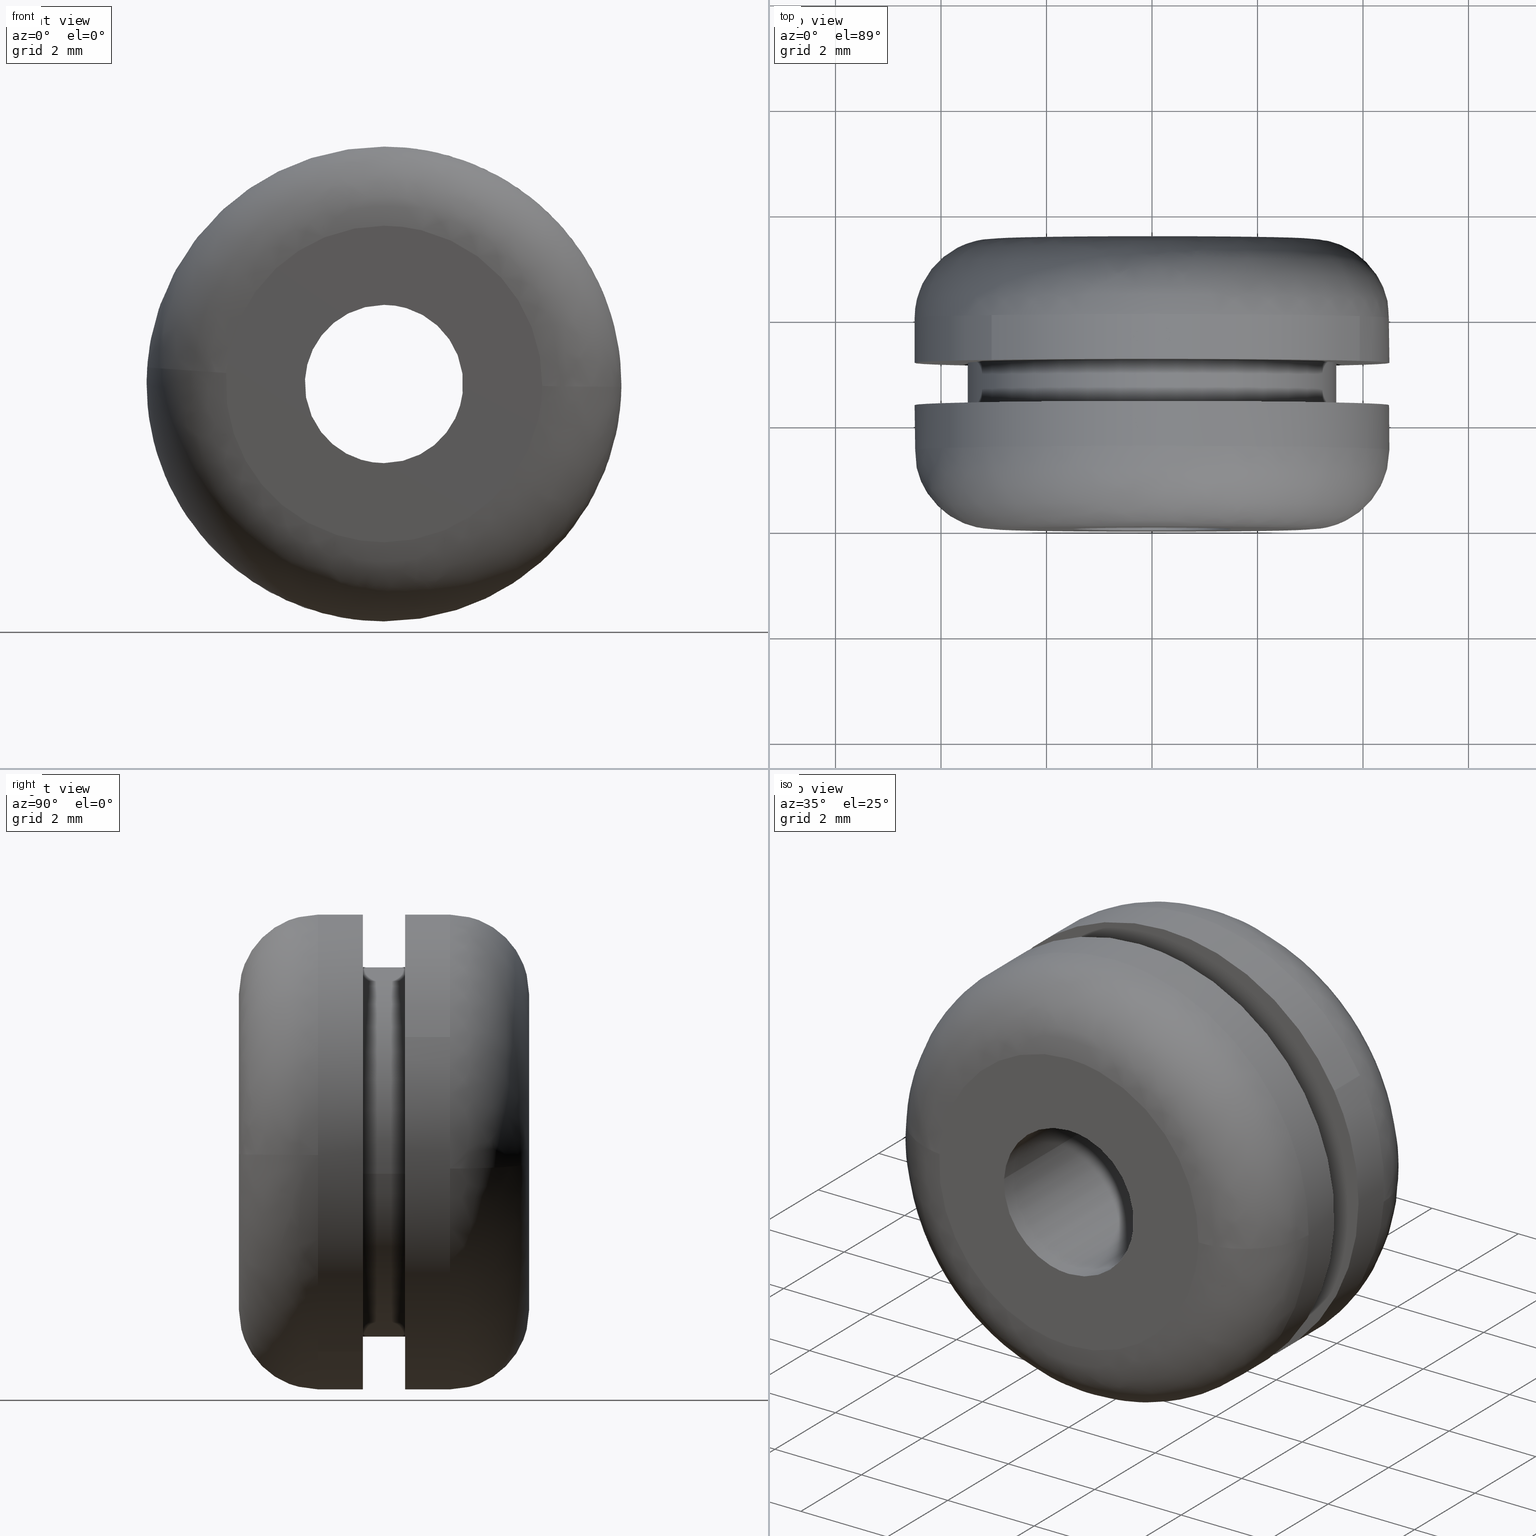
[diagram: canonical four-view strip — front | top / right | iso, engineering-drawing reading convention]
A machine part, canonical four-view strip (front | top / right | iso — engineering-drawing reading convention). The complete STEP part file that produces these views, byte-faithful:
ISO-10303-21;
HEADER;
/****************************************************************
 * Generated by software with PDE/Lib inside                    *
 * PDElib Version 4.4.1-0003, patched  Thursday August 19 11:58 *
 * International Technegroup Inc. (www.iti-oh.com)              *
 ****************************************************************/
FILE_DESCRIPTION((''),'2;1');
FILE_NAME('','2005-12-14T14:12:36',(''),(''),'','CADfix','');
FILE_SCHEMA(('AUTOMOTIVE_DESIGN'));
ENDSEC;
DATA;
#5=APPLICATION_CONTEXT('automotive design');
#6=APPLICATION_PROTOCOL_DEFINITION('Draft International Standard','automotive_design',1998,#5);
#7=PRODUCT_CONTEXT('None',#5,'mechanical');
#8=PRODUCT('grommet','','None',(#7));
#9=PRODUCT_RELATED_PRODUCT_CATEGORY('part','description',(#8));
#10=PRODUCT_DEFINITION_FORMATION('None','None',#8);
#11=PRODUCT_DEFINITION_CONTEXT('part definition',#5,'design');
#12=PRODUCT_DEFINITION('None','None',#10,#11);
#18=(NAMED_UNIT(*)PLANE_ANGLE_UNIT()SI_UNIT($,.RADIAN.));
#19=DIMENSIONAL_EXPONENTS(0.0,0.0,0.0,0.0,0.0,0.0,0.0);
#20=PLANE_ANGLE_MEASURE_WITH_UNIT(PLANE_ANGLE_MEASURE(0.017453292500000),#18);
#24=(CONVERSION_BASED_UNIT('DEGREE',#20)NAMED_UNIT(#19)PLANE_ANGLE_UNIT());
#28=(NAMED_UNIT(*)SI_UNIT($,.STERADIAN.)SOLID_ANGLE_UNIT());
#32=(LENGTH_UNIT()NAMED_UNIT(*)SI_UNIT(.MILLI.,.METRE.));
#34=UNCERTAINTY_MEASURE_WITH_UNIT(LENGTH_MEASURE(0.001000000000000),#32,'DISTANCE_ACCURACY_VALUE','');
#36=(GEOMETRIC_REPRESENTATION_CONTEXT(3)GLOBAL_UNCERTAINTY_ASSIGNED_CONTEXT((#34))GLOBAL_UNIT_ASSIGNED_CONTEXT((#24,#28,#32))REPRESENTATION_CONTEXT('None','None'));
#37=AXIS2_PLACEMENT_3D('',#38,#39,#40);
#38=CARTESIAN_POINT('',(0.0,0.0,0.0));
#39=DIRECTION('',(0.0,0.0,1.0));
#40=DIRECTION('',(1.0,0.0,0.0));
#41=ADVANCED_BREP_SHAPE_REPRESENTATION('',(#37,#1233),#36);
#42=PRODUCT_DEFINITION_SHAPE('','',#12);
#43=SHAPE_DEFINITION_REPRESENTATION(#42,#41);
#44=CARTESIAN_POINT('',(2.442279876880124,2.371250000000001,-3.779585824265193));
#45=CARTESIAN_POINT('',(2.661215519397267,2.371250000000001,-3.638114737507850));
#46=CARTESIAN_POINT('',(2.862351991249937,2.371250000000001,-3.472310625244739));
#47=CARTESIAN_POINT('',(6.334662616494676,2.371250000000001,-0.609958633994802));
#48=CARTESIAN_POINT('',(3.472310625244738,2.371250000000001,2.862351991249936));
#49=CARTESIAN_POINT('',(0.609958633994802,2.371250000000001,6.334662616494675));
#50=CARTESIAN_POINT('',(-2.862351991249937,2.371250000000001,3.472310625244738));
#51=CARTESIAN_POINT('',(-6.334662616494676,2.371250000000001,0.609958633994801));
#52=CARTESIAN_POINT('',(-3.472310625244738,2.371250000000001,-2.862351991249937));
#53=CARTESIAN_POINT('',(2.442279876880124,1.478218750000000,-3.779585824265193));
#54=CARTESIAN_POINT('',(2.661215519397267,1.478218750000000,-3.638114737507850));
#55=CARTESIAN_POINT('',(2.862351991249937,1.478218750000000,-3.472310625244739));
#56=CARTESIAN_POINT('',(6.334662616494676,1.478218750000000,-0.609958633994802));
#57=CARTESIAN_POINT('',(3.472310625244738,1.478218750000000,2.862351991249936));
#58=CARTESIAN_POINT('',(0.609958633994802,1.478218750000000,6.334662616494675));
#59=CARTESIAN_POINT('',(-2.862351991249937,1.478218750000000,3.472310625244738));
#60=CARTESIAN_POINT('',(-6.334662616494676,1.478218750000000,0.609958633994801));
#61=CARTESIAN_POINT('',(-3.472310625244738,1.478218750000000,-2.862351991249937));
#69=(BOUNDED_SURFACE()B_SPLINE_SURFACE(2,1,((#44,#53),(#45,#54),(#46,#55),(#47,#56),(#48,#57),(#49,#58),(#50,#59),(#51,#60),(#52,#61)),.UNSPECIFIED.,.F.,.F.,.U.)B_SPLINE_SURFACE_WITH_KNOTS((3,2,2,2,3),(2,2),(0.0,0.596467529817256,8.052311652532964,15.508155775248680,22.963999897964381),(0.0,1.0),.UNSPECIFIED.)GEOMETRIC_REPRESENTATION_ITEM()RATIONAL_B_SPLINE_SURFACE(((0.956886118190660,0.956886118190660),(0.976568542494924,0.976568542494924),(1.0,1.0),(0.707106781186548,0.707106781186548),(1.0,1.0),(0.707106781186548,0.707106781186548),(1.0,1.0),(0.707106781186548,0.707106781186548),(1.0,1.0)))REPRESENTATION_ITEM('')SURFACE());
#70=CARTESIAN_POINT('',(2.442279190676583,1.500000644835007,-3.779586267673306));
#71=VERTEX_POINT('',#70);
#72=CARTESIAN_POINT('',(4.499644736739940,1.500001817245184,-0.056544169457881));
#73=VERTEX_POINT('',#72);
#74=CARTESIAN_POINT('',(2.442279190676583,1.500000644835007,-3.779586267673306));
#75=CARTESIAN_POINT('',(4.469319372852793,1.500001323777086,-2.469761399752330));
#76=CARTESIAN_POINT('',(4.499644736739940,1.500001817245185,-0.056544169457881));
#84=(BOUNDED_CURVE()B_SPLINE_CURVE(2,(#74,#75,#76),.UNSPECIFIED.,.F.,.U.)B_SPLINE_CURVE_WITH_KNOTS((3,3),(0.092934687537598,0.247784413567222),.UNSPECIFIED.)CURVE()GEOMETRIC_REPRESENTATION_ITEM()RATIONAL_B_SPLINE_CURVE((0.863190132942542,0.816652401106871,0.994854566418424))REPRESENTATION_ITEM(''));
#85=EDGE_CURVE('',#71,#73,#84,.T.);
#86=ORIENTED_EDGE('',*,*,#85,.F.);
#87=CARTESIAN_POINT('',(2.442279195566139,2.350000000000001,-3.779586264514167));
#88=VERTEX_POINT('',#87);
#89=CARTESIAN_POINT('',(2.442279195566139,2.350000000000001,-3.779586264514167));
#90=CARTESIAN_POINT('',(2.442279190676583,1.500000644835007,-3.779586267673306));
#91=QUASI_UNIFORM_CURVE('',1,(#89,#90),.UNSPECIFIED.,.F.,.U.);
#92=EDGE_CURVE('',#88,#71,#91,.T.);
#93=ORIENTED_EDGE('',*,*,#92,.F.);
#94=CARTESIAN_POINT('',(0.0,2.350000000000000,4.500000000000000));
#95=VERTEX_POINT('',#94);
#96=CARTESIAN_POINT('',(2.442279195566138,2.350000000000001,-3.779586264514167));
#97=CARTESIAN_POINT('',(4.500000000000000,2.349999999999999,-2.449936304992268));
#98=CARTESIAN_POINT('',(4.500000000000000,2.350000000000000,-3.061516E-016));
#99=CARTESIAN_POINT('',(4.500000000000000,2.350000000000001,4.500000000000000));
#100=CARTESIAN_POINT('',(0.0,2.350000000000000,4.500000000000000));
#108=(BOUNDED_CURVE()B_SPLINE_CURVE(2,(#96,#97,#98,#99,#100),.UNSPECIFIED.,.F.,.U.)B_SPLINE_CURVE_WITH_KNOTS((3,2,3),(0.092934687932361,0.250000000000000,0.500000000000000),.UNSPECIFIED.)CURVE()GEOMETRIC_REPRESENTATION_ITEM()RATIONAL_B_SPLINE_CURVE((0.863190132705262,0.815986540738279,1.0,0.707106781186547,1.0))REPRESENTATION_ITEM(''));
#109=EDGE_CURVE('',#88,#95,#108,.T.);
#110=ORIENTED_EDGE('',*,*,#109,.T.);
#111=CARTESIAN_POINT('',(-3.472310974067233,2.350000000000000,-2.862351568094310));
#112=VERTEX_POINT('',#111);
#113=CARTESIAN_POINT('',(0.0,2.350000000000000,4.500000000000000));
#114=CARTESIAN_POINT('',(-4.500000000000000,2.350000000000001,4.500000000000000));
#115=CARTESIAN_POINT('',(-4.500000000000000,2.350000000000000,-3.061516E-016));
#116=CARTESIAN_POINT('',(-4.500000000000000,2.350000000000000,-1.615664470508313));
#117=CARTESIAN_POINT('',(-3.472310974067233,2.350000000000001,-2.862351568094310));
#125=(BOUNDED_CURVE()B_SPLINE_CURVE(2,(#113,#114,#115,#116,#117),.UNSPECIFIED.,.F.,.U.)B_SPLINE_CURVE_WITH_KNOTS((3,2,3),(0.500000000000000,0.750000000000000,0.860504588998465),.UNSPECIFIED.)CURVE()GEOMETRIC_REPRESENTATION_ITEM()RATIONAL_B_SPLINE_CURVE((1.0,0.707106781186547,1.0,0.870535820938328,0.855522729054526))REPRESENTATION_ITEM(''));
#126=EDGE_CURVE('',#95,#112,#125,.T.);
#127=ORIENTED_EDGE('',*,*,#126,.T.);
#128=CARTESIAN_POINT('',(-3.472310983391997,1.500000969015339,-2.862351556781801));
#129=VERTEX_POINT('',#128);
#130=CARTESIAN_POINT('',(-3.472310974067233,2.350000000000000,-2.862351568094310));
#131=CARTESIAN_POINT('',(-3.472310983391997,1.500000969015339,-2.862351556781801));
#132=QUASI_UNIFORM_CURVE('',1,(#130,#131),.UNSPECIFIED.,.F.,.U.);
#133=EDGE_CURVE('',#112,#129,#132,.T.);
#134=ORIENTED_EDGE('',*,*,#133,.T.);
#135=CARTESIAN_POINT('',(-4.489045532774552,1.500001788692589,0.313799625011947));
#136=VERTEX_POINT('',#135);
#137=CARTESIAN_POINT('',(-4.489045532774553,1.500001788692590,0.313799625011947));
#138=CARTESIAN_POINT('',(-4.499999999997907,1.500001759578008,0.157091017884401));
#139=CARTESIAN_POINT('',(-4.499999999997943,1.500001728357170,-1.432532E-013));
#140=CARTESIAN_POINT('',(-4.499999999998325,1.500001407254165,-1.615664453957860));
#141=CARTESIAN_POINT('',(-3.472310983391997,1.500000969015339,-2.862351556781802));
#149=(BOUNDED_CURVE()B_SPLINE_CURVE(2,(#137,#138,#139,#140,#141),.UNSPECIFIED.,.F.,.U.)B_SPLINE_CURVE_WITH_KNOTS((3,2,3),(0.737833686806281,0.750000000000000,0.860504588013028),.UNSPECIFIED.)CURVE()GEOMETRIC_REPRESENTATION_ITEM()RATIONAL_B_SPLINE_CURVE((0.972879876960564,0.985746277470396,1.0,0.870535822092839,0.855522729322288))REPRESENTATION_ITEM(''));
#150=EDGE_CURVE('',#136,#129,#149,.T.);
#151=ORIENTED_EDGE('',*,*,#150,.F.);
#152=CARTESIAN_POINT('',(0.0,1.500000000000000,4.500000000000000));
#153=VERTEX_POINT('',#152);
#154=CARTESIAN_POINT('',(0.0,1.500000000000000,4.500000000000000));
#155=CARTESIAN_POINT('',(-4.196415819330905,1.500000894346295,4.499999999999927));
#156=CARTESIAN_POINT('',(-4.489045532774553,1.500001788692590,0.313799625011947));
#164=(BOUNDED_CURVE()B_SPLINE_CURVE(2,(#154,#155,#156),.UNSPECIFIED.,.F.,.U.)B_SPLINE_CURVE_WITH_KNOTS((3,3),(0.500000000000000,0.737833686806281),.UNSPECIFIED.)CURVE()GEOMETRIC_REPRESENTATION_ITEM()RATIONAL_B_SPLINE_CURVE((1.0,0.721360503716151,0.972879876960564))REPRESENTATION_ITEM(''));
#165=EDGE_CURVE('',#153,#136,#164,.T.);
#166=ORIENTED_EDGE('',*,*,#165,.F.);
#167=CARTESIAN_POINT('',(4.499644736739940,1.500001817245185,-0.056544169457881));
#168=CARTESIAN_POINT('',(4.499999999996803,1.500001811607657,-0.028273200776630));
#169=CARTESIAN_POINT('',(4.499999999996813,1.500001805898842,3.990191E-014));
#170=CARTESIAN_POINT('',(4.499999999998416,1.500000897276250,4.500000000000020));
#171=CARTESIAN_POINT('',(0.0,1.500000000000000,4.500000000000000));
#179=(BOUNDED_CURVE()B_SPLINE_CURVE(2,(#167,#168,#169,#170,#171),.UNSPECIFIED.,.F.,.U.)B_SPLINE_CURVE_WITH_KNOTS((3,2,3),(0.247784413567222,0.250000000000000,0.500000000000000),.UNSPECIFIED.)CURVE()GEOMETRIC_REPRESENTATION_ITEM()RATIONAL_B_SPLINE_CURVE((0.994854566418424,0.997404279032577,1.0,0.707106781186547,1.0))REPRESENTATION_ITEM(''));
#180=EDGE_CURVE('',#73,#153,#179,.T.);
#181=ORIENTED_EDGE('',*,*,#180,.F.);
#182=EDGE_LOOP('',(#86,#93,#110,#127,#134,#151,#166,#181));
#183=FACE_OUTER_BOUND('',#182,.T.);
#184=ADVANCED_FACE('',(#183),#69,.T.);
#185=CARTESIAN_POINT('',(-3.472310625244738,2.371250000000001,-2.862351991249937));
#186=CARTESIAN_POINT('',(-0.923409932191193,2.371250000000002,-5.954415785723593));
#187=CARTESIAN_POINT('',(2.442279876880124,2.371250000000001,-3.779585824265193));
#188=CARTESIAN_POINT('',(-3.472310625244738,1.478218750000000,-2.862351991249937));
#189=CARTESIAN_POINT('',(-0.923409932191193,1.478218750000000,-5.954415785723593));
#190=CARTESIAN_POINT('',(2.442279876880124,1.478218750000000,-3.779585824265193));
#198=(BOUNDED_SURFACE()B_SPLINE_SURFACE(2,1,((#185,#188),(#186,#189),(#187,#190)),.UNSPECIFIED.,.F.,.F.,.U.)B_SPLINE_SURFACE_WITH_KNOTS((3,3),(2,2),(0.0,6.851852803546001),(0.0,1.0),.UNSPECIFIED.)GEOMETRIC_REPRESENTATION_ITEM()RATIONAL_B_SPLINE_SURFACE(((1.0,1.0),(0.730538238691624,0.730538238691624),(0.956886118190660,0.956886118190660)))REPRESENTATION_ITEM('')SURFACE());
#199=CARTESIAN_POINT('',(0.0,1.500000000000000,-4.500000000000000));
#200=VERTEX_POINT('',#199);
#201=CARTESIAN_POINT('',(0.0,1.500000000000000,-4.500000000000000));
#202=CARTESIAN_POINT('',(1.327391529751170,1.500000271410983,-4.499999999999995));
#203=CARTESIAN_POINT('',(2.442279190676583,1.500000644835007,-3.779586267673307));
#211=(BOUNDED_CURVE()B_SPLINE_CURVE(2,(#201,#202,#203),.UNSPECIFIED.,.F.,.U.)B_SPLINE_CURVE_WITH_KNOTS((3,3),(0.0,0.092934687537598),.UNSPECIFIED.)CURVE()GEOMETRIC_REPRESENTATION_ITEM()RATIONAL_B_SPLINE_CURVE((1.0,0.891120240910762,0.863190132942542))REPRESENTATION_ITEM(''));
#212=EDGE_CURVE('',#200,#71,#211,.T.);
#213=ORIENTED_EDGE('',*,*,#212,.F.);
#214=CARTESIAN_POINT('',(-3.472310983391997,1.500000969015339,-2.862351556781802));
#215=CARTESIAN_POINT('',(-2.122338472770120,1.500000393345193,-4.500000000000034));
#216=CARTESIAN_POINT('',(0.0,1.500000000000000,-4.500000000000000));
#224=(BOUNDED_CURVE()B_SPLINE_CURVE(2,(#214,#215,#216),.UNSPECIFIED.,.F.,.U.)B_SPLINE_CURVE_WITH_KNOTS((3,3),(0.860504588013029,1.0),.UNSPECIFIED.)CURVE()GEOMETRIC_REPRESENTATION_ITEM()RATIONAL_B_SPLINE_CURVE((0.855522729322287,0.836570959093710,1.0))REPRESENTATION_ITEM(''));
#225=EDGE_CURVE('',#129,#200,#224,.T.);
#226=ORIENTED_EDGE('',*,*,#225,.F.);
#227=ORIENTED_EDGE('',*,*,#133,.F.);
#228=CARTESIAN_POINT('',(0.0,2.350000000000000,-4.500000000000000));
#229=VERTEX_POINT('',#228);
#230=CARTESIAN_POINT('',(-3.472310974067233,2.350000000000001,-2.862351568094310));
#231=CARTESIAN_POINT('',(-2.122338454848843,2.350000000000000,-4.499999999999999));
#232=CARTESIAN_POINT('',(0.0,2.350000000000000,-4.500000000000000));
#240=(BOUNDED_CURVE()B_SPLINE_CURVE(2,(#230,#231,#232),.UNSPECIFIED.,.F.,.U.)B_SPLINE_CURVE_WITH_KNOTS((3,3),(0.860504588998465,1.0),.UNSPECIFIED.)CURVE()GEOMETRIC_REPRESENTATION_ITEM()RATIONAL_B_SPLINE_CURVE((0.855522729054526,0.836570960248220,1.0))REPRESENTATION_ITEM(''));
#241=EDGE_CURVE('',#112,#229,#240,.T.);
#242=ORIENTED_EDGE('',*,*,#241,.T.);
#243=CARTESIAN_POINT('',(0.0,2.350000000000000,-4.500000000000000));
#244=CARTESIAN_POINT('',(1.327391536078984,2.350000000000000,-4.500000000000000));
#245=CARTESIAN_POINT('',(2.442279195566138,2.350000000000001,-3.779586264514167));
#253=(BOUNDED_CURVE()B_SPLINE_CURVE(2,(#243,#244,#245),.UNSPECIFIED.,.F.,.U.)B_SPLINE_CURVE_WITH_KNOTS((3,3),(0.0,0.092934687932361),.UNSPECIFIED.)CURVE()GEOMETRIC_REPRESENTATION_ITEM()RATIONAL_B_SPLINE_CURVE((1.0,0.891120240448269,0.863190132705262))REPRESENTATION_ITEM(''));
#254=EDGE_CURVE('',#229,#88,#253,.T.);
#255=ORIENTED_EDGE('',*,*,#254,.T.);
#256=ORIENTED_EDGE('',*,*,#92,.T.);
#257=EDGE_LOOP('',(#213,#226,#227,#242,#255,#256));
#258=FACE_OUTER_BOUND('',#257,.T.);
#259=ADVANCED_FACE('',(#258),#198,.T.);
#260=CARTESIAN_POINT('',(3.475533342272832,3.170000000000000,-0.413119821298655));
#261=CARTESIAN_POINT('',(3.487356654070120,3.170000000000000,-0.313651550232922));
#262=CARTESIAN_POINT('',(3.493471794476533,3.170000000000000,-0.213669888372000));
#263=CARTESIAN_POINT('',(3.707141682848533,3.170000000000000,3.279801906104533));
#264=CARTESIAN_POINT('',(0.213669888371999,3.170000000000000,3.493471794476533));
#265=CARTESIAN_POINT('',(-3.279801906104533,3.170000000000000,3.707141682848533));
#266=CARTESIAN_POINT('',(-3.493471794476533,3.170000000000000,0.213669888371999));
#267=CARTESIAN_POINT('',(3.475533342272832,2.329499999999999,-0.413119821298655));
#268=CARTESIAN_POINT('',(3.487356654070120,2.329500000000000,-0.313651550232922));
#269=CARTESIAN_POINT('',(3.493471794476533,2.329500000000000,-0.213669888372000));
#270=CARTESIAN_POINT('',(3.707141682848533,2.329500000000000,3.279801906104533));
#271=CARTESIAN_POINT('',(0.213669888371999,2.329500000000000,3.493471794476533));
#272=CARTESIAN_POINT('',(-3.279801906104533,2.329500000000000,3.707141682848533));
#273=CARTESIAN_POINT('',(-3.493471794476533,2.329500000000000,0.213669888371999));
#281=(BOUNDED_SURFACE()B_SPLINE_SURFACE(2,1,((#260,#267),(#261,#268),(#262,#269),(#263,#270),(#264,#271),(#265,#272),(#266,#273)),.UNSPECIFIED.,.F.,.F.,.U.)B_SPLINE_SURFACE_WITH_KNOTS((3,2,2,3),(2,2),(0.0,0.231959594928934,6.030949468152263,11.829939341375590),(0.0,1.0),.UNSPECIFIED.)GEOMETRIC_REPRESENTATION_ITEM()RATIONAL_B_SPLINE_SURFACE(((0.977505800795127,0.977505800795127),(0.988284271247462,0.988284271247462),(1.0,1.0),(0.707106781186548,0.707106781186548),(1.0,1.0),(0.707106781186548,0.707106781186548),(1.0,1.0)))REPRESENTATION_ITEM('')SURFACE());
#282=CARTESIAN_POINT('',(3.475533733286015,2.350000000000044,-0.413116531719559));
#283=VERTEX_POINT('',#282);
#284=CARTESIAN_POINT('',(0.0,2.350000000000000,3.500000000000000));
#285=VERTEX_POINT('',#284);
#286=CARTESIAN_POINT('',(3.475533733286015,2.350000000000045,-0.413116531719560));
#287=CARTESIAN_POINT('',(3.500000000000000,2.350000000000000,-0.207282756603866));
#288=CARTESIAN_POINT('',(3.500000000000000,2.350000000000000,-3.061516E-016));
#289=CARTESIAN_POINT('',(3.500000000000000,2.350000000000001,3.500000000000000));
#290=CARTESIAN_POINT('',(0.0,2.350000000000000,3.500000000000000));
#298=(BOUNDED_CURVE()B_SPLINE_CURVE(2,(#286,#287,#288,#289,#290),.UNSPECIFIED.,.F.,.U.)B_SPLINE_CURVE_WITH_KNOTS((3,2,3),(0.229562633476586,0.250000000000000,0.500000000000000),.UNSPECIFIED.)CURVE()GEOMETRIC_REPRESENTATION_ITEM()RATIONAL_B_SPLINE_CURVE((0.956027067718118,0.976056135739548,1.0,0.707106781186547,1.0))REPRESENTATION_ITEM(''));
#299=EDGE_CURVE('',#283,#285,#298,.T.);
#300=ORIENTED_EDGE('',*,*,#299,.F.);
#301=CARTESIAN_POINT('',(3.475533728463566,3.150000000000000,-0.413116572290967));
#302=VERTEX_POINT('',#301);
#303=CARTESIAN_POINT('',(3.475533728463566,3.150000000000000,-0.413116572290967));
#304=CARTESIAN_POINT('',(3.475533733286015,2.350000000000044,-0.413116531719559));
#305=QUASI_UNIFORM_CURVE('',1,(#303,#304),.UNSPECIFIED.,.F.,.U.);
#306=EDGE_CURVE('',#302,#283,#305,.T.);
#307=ORIENTED_EDGE('',*,*,#306,.F.);
#308=CARTESIAN_POINT('',(0.0,3.150000000000000,3.500000000000000));
#309=VERTEX_POINT('',#308);
#310=CARTESIAN_POINT('',(3.475533728463566,3.150000000000000,-0.413116572290966));
#311=CARTESIAN_POINT('',(3.500000000000000,3.149999999999999,-0.207282777104022));
#312=CARTESIAN_POINT('',(3.500000000000000,3.150000000000000,-3.061516E-016));
#313=CARTESIAN_POINT('',(3.500000000000000,3.150000000000001,3.500000000000000));
#314=CARTESIAN_POINT('',(0.0,3.150000000000000,3.500000000000000));
#322=(BOUNDED_CURVE()B_SPLINE_CURVE(2,(#310,#311,#312,#313,#314),.UNSPECIFIED.,.F.,.U.)B_SPLINE_CURVE_WITH_KNOTS((3,2,3),(0.229562631503738,0.250000000000000,0.500000000000000),.UNSPECIFIED.)CURVE()GEOMETRIC_REPRESENTATION_ITEM()RATIONAL_B_SPLINE_CURVE((0.956027063851249,0.976056133428213,1.0,0.707106781186547,1.0))REPRESENTATION_ITEM(''));
#323=EDGE_CURVE('',#302,#309,#322,.T.);
#324=ORIENTED_EDGE('',*,*,#323,.T.);
#325=CARTESIAN_POINT('',(-3.493471835956126,3.150000000000000,0.213669210184497));
#326=VERTEX_POINT('',#325);
#327=CARTESIAN_POINT('',(0.0,3.150000000000000,3.500000000000000));
#328=CARTESIAN_POINT('',(-3.292472514893506,3.150000000000000,3.500000000000000));
#329=CARTESIAN_POINT('',(-3.493471835956127,3.150000000000000,0.213669210184497));
#337=(BOUNDED_CURVE()B_SPLINE_CURVE(2,(#327,#328,#329),.UNSPECIFIED.,.F.,.U.)B_SPLINE_CURVE_WITH_KNOTS((3,3),(0.500000000000000,0.739333029234972),.UNSPECIFIED.)CURVE()GEOMETRIC_REPRESENTATION_ITEM()RATIONAL_B_SPLINE_CURVE((1.0,0.719603914795980,0.976072185252002))REPRESENTATION_ITEM(''));
#338=EDGE_CURVE('',#309,#326,#337,.T.);
#339=ORIENTED_EDGE('',*,*,#338,.T.);
#340=CARTESIAN_POINT('',(-3.493471836473695,2.350000000000005,0.213669201722275));
#341=VERTEX_POINT('',#340);
#342=CARTESIAN_POINT('',(-3.493471835956126,3.150000000000000,0.213669210184497));
#343=CARTESIAN_POINT('',(-3.493471836473695,2.350000000000005,0.213669201722275));
#344=QUASI_UNIFORM_CURVE('',1,(#342,#343),.UNSPECIFIED.,.F.,.U.);
#345=EDGE_CURVE('',#326,#341,#344,.T.);
#346=ORIENTED_EDGE('',*,*,#345,.T.);
#347=CARTESIAN_POINT('',(0.0,2.350000000000000,3.500000000000000));
#348=CARTESIAN_POINT('',(-3.292472530873979,2.350000000000000,3.499999999999999));
#349=CARTESIAN_POINT('',(-3.493471836473695,2.350000000000005,0.213669201722275));
#357=(BOUNDED_CURVE()B_SPLINE_CURVE(2,(#347,#348,#349),.UNSPECIFIED.,.F.,.U.)B_SPLINE_CURVE_WITH_KNOTS((3,3),(0.500000000000000,0.739333030070890),.UNSPECIFIED.)CURVE()GEOMETRIC_REPRESENTATION_ITEM()RATIONAL_B_SPLINE_CURVE((1.0,0.719603913816641,0.976072187043535))REPRESENTATION_ITEM(''));
#358=EDGE_CURVE('',#285,#341,#357,.T.);
#359=ORIENTED_EDGE('',*,*,#358,.F.);
#360=EDGE_LOOP('',(#300,#307,#324,#339,#346,#359));
#361=FACE_OUTER_BOUND('',#360,.T.);
#362=ADVANCED_FACE('',(#361),#281,.T.);
#363=CARTESIAN_POINT('',(-3.493471794476533,3.170000000000000,0.213669888371999));
#364=CARTESIAN_POINT('',(-3.707141682848533,3.170000000000000,-3.279801906104535));
#365=CARTESIAN_POINT('',(-0.213669888371999,3.170000000000000,-3.493471794476534));
#366=CARTESIAN_POINT('',(3.085402217938253,3.170000000000001,-3.695251688563845));
#367=CARTESIAN_POINT('',(3.475533342272832,3.170000000000000,-0.413119821298655));
#368=CARTESIAN_POINT('',(-3.493471794476533,2.329500000000000,0.213669888371999));
#369=CARTESIAN_POINT('',(-3.707141682848533,2.329500000000000,-3.279801906104535));
#370=CARTESIAN_POINT('',(-0.213669888371999,2.329500000000000,-3.493471794476534));
#371=CARTESIAN_POINT('',(3.085402217938253,2.329500000000000,-3.695251688563845));
#372=CARTESIAN_POINT('',(3.475533342272832,2.329499999999999,-0.413119821298655));
#380=(BOUNDED_SURFACE()B_SPLINE_SURFACE(2,1,((#363,#368),(#364,#369),(#365,#370),(#366,#371),(#367,#372)),.UNSPECIFIED.,.F.,.F.,.U.)B_SPLINE_SURFACE_WITH_KNOTS((3,2,3),(2,2),(0.0,5.798989873223329,11.366020151517720),(0.0,1.0),.UNSPECIFIED.)GEOMETRIC_REPRESENTATION_ITEM()RATIONAL_B_SPLINE_SURFACE(((1.0,1.0),(0.707106781186548,0.707106781186548),(1.0,1.0),(0.718822509939086,0.718822509939086),(0.977505800795127,0.977505800795127)))REPRESENTATION_ITEM('')SURFACE());
#381=CARTESIAN_POINT('',(0.0,2.350000000000000,-3.500000000000000));
#382=VERTEX_POINT('',#381);
#383=CARTESIAN_POINT('',(0.0,2.350000000000000,-3.500000000000000));
#384=CARTESIAN_POINT('',(3.108613803831822,2.350000000000000,-3.500000000000001));
#385=CARTESIAN_POINT('',(3.475533733286015,2.350000000000045,-0.413116531719560));
#393=(BOUNDED_CURVE()B_SPLINE_CURVE(2,(#383,#384,#385),.UNSPECIFIED.,.F.,.U.)B_SPLINE_CURVE_WITH_KNOTS((3,3),(0.0,0.229562633476586),.UNSPECIFIED.)CURVE()GEOMETRIC_REPRESENTATION_ITEM()RATIONAL_B_SPLINE_CURVE((1.0,0.731050645446999,0.956027067718118))REPRESENTATION_ITEM(''));
#394=EDGE_CURVE('',#382,#283,#393,.T.);
#395=ORIENTED_EDGE('',*,*,#394,.F.);
#396=CARTESIAN_POINT('',(-3.493471836473695,2.350000000000005,0.213669201722275));
#397=CARTESIAN_POINT('',(-3.500000000000000,2.350000000000000,0.106933982970050));
#398=CARTESIAN_POINT('',(-3.500000000000000,2.350000000000000,-3.061516E-016));
#399=CARTESIAN_POINT('',(-3.500000000000000,2.350000000000001,-3.500000000000001));
#400=CARTESIAN_POINT('',(0.0,2.350000000000000,-3.500000000000000));
#408=(BOUNDED_CURVE()B_SPLINE_CURVE(2,(#396,#397,#398,#399,#400),.UNSPECIFIED.,.F.,.U.)B_SPLINE_CURVE_WITH_KNOTS((3,2,3),(0.739333030070890,0.750000000000000,1.0),.UNSPECIFIED.)CURVE()GEOMETRIC_REPRESENTATION_ITEM()RATIONAL_B_SPLINE_CURVE((0.976072187043536,0.987502867369907,1.0,0.707106781186547,1.0))REPRESENTATION_ITEM(''));
#409=EDGE_CURVE('',#341,#382,#408,.T.);
#410=ORIENTED_EDGE('',*,*,#409,.F.);
#411=ORIENTED_EDGE('',*,*,#345,.F.);
#412=CARTESIAN_POINT('',(0.0,3.150000000000000,-3.500000000000000));
#413=VERTEX_POINT('',#412);
#414=CARTESIAN_POINT('',(-3.493471835956127,3.150000000000000,0.213669210184497));
#415=CARTESIAN_POINT('',(-3.500000000000000,3.150000000000000,0.106933991455999));
#416=CARTESIAN_POINT('',(-3.500000000000000,3.150000000000000,-3.061516E-016));
#417=CARTESIAN_POINT('',(-3.500000000000000,3.150000000000001,-3.500000000000001));
#418=CARTESIAN_POINT('',(0.0,3.150000000000000,-3.500000000000000));
#426=(BOUNDED_CURVE()B_SPLINE_CURVE(2,(#414,#415,#416,#417,#418),.UNSPECIFIED.,.F.,.U.)B_SPLINE_CURVE_WITH_KNOTS((3,2,3),(0.739333029234972,0.750000000000000,1.0),.UNSPECIFIED.)CURVE()GEOMETRIC_REPRESENTATION_ITEM()RATIONAL_B_SPLINE_CURVE((0.976072185252002,0.987502866390567,1.0,0.707106781186547,1.0))REPRESENTATION_ITEM(''));
#427=EDGE_CURVE('',#326,#413,#426,.T.);
#428=ORIENTED_EDGE('',*,*,#427,.T.);
#429=CARTESIAN_POINT('',(0.0,3.150000000000000,-3.500000000000000));
#430=CARTESIAN_POINT('',(3.108613767288181,3.150000000000000,-3.500000000000001));
#431=CARTESIAN_POINT('',(3.475533728463566,3.150000000000000,-0.413116572290966));
#439=(BOUNDED_CURVE()B_SPLINE_CURVE(2,(#429,#430,#431),.UNSPECIFIED.,.F.,.U.)B_SPLINE_CURVE_WITH_KNOTS((3,3),(0.0,0.229562631503738),.UNSPECIFIED.)CURVE()GEOMETRIC_REPRESENTATION_ITEM()RATIONAL_B_SPLINE_CURVE((1.0,0.731050647758335,0.956027063851249))REPRESENTATION_ITEM(''));
#440=EDGE_CURVE('',#413,#302,#439,.T.);
#441=ORIENTED_EDGE('',*,*,#440,.T.);
#442=ORIENTED_EDGE('',*,*,#306,.T.);
#443=EDGE_LOOP('',(#395,#410,#411,#428,#441,#442));
#444=FACE_OUTER_BOUND('',#443,.T.);
#445=ADVANCED_FACE('',(#444),#380,.T.);
#446=CARTESIAN_POINT('',(3.937258923494086,4.021250000000000,2.178988795144706));
#447=CARTESIAN_POINT('',(3.678613609624216,4.021250000000001,2.646340243818148));
#448=CARTESIAN_POINT('',(3.317748015645557,4.021250000000000,3.040155934270470));
#449=CARTESIAN_POINT('',(0.277592081375087,4.021250000000000,6.357903949916027));
#450=CARTESIAN_POINT('',(-3.040155934270470,4.021250000000000,3.317748015645556));
#451=CARTESIAN_POINT('',(3.937258923494086,3.128218750000001,2.178988795144706));
#452=CARTESIAN_POINT('',(3.678613609624216,3.128218750000000,2.646340243818148));
#453=CARTESIAN_POINT('',(3.317748015645557,3.128218749999999,3.040155934270470));
#454=CARTESIAN_POINT('',(0.277592081375087,3.128218749999999,6.357903949916027));
#455=CARTESIAN_POINT('',(-3.040155934270470,3.128218749999999,3.317748015645556));
#463=(BOUNDED_SURFACE()B_SPLINE_SURFACE(2,1,((#446,#451),(#447,#452),(#448,#453),(#449,#454),(#450,#455)),.UNSPECIFIED.,.F.,.F.,.U.)B_SPLINE_SURFACE_WITH_KNOTS((3,2,3),(2,2),(0.0,1.192935059634515,8.648779182350223),(0.0,1.0),.UNSPECIFIED.)GEOMETRIC_REPRESENTATION_ITEM()RATIONAL_B_SPLINE_SURFACE(((0.921270302782944,0.921270302782944),(0.953137084989848,0.953137084989848),(1.0,1.0),(0.707106781186548,0.707106781186548),(1.0,1.0)))REPRESENTATION_ITEM('')SURFACE());
#464=CARTESIAN_POINT('',(3.937259326449927,3.999998615104019,2.178988067033666));
#465=VERTEX_POINT('',#464);
#466=CARTESIAN_POINT('',(0.0,4.0,4.500000000000000));
#467=VERTEX_POINT('',#466);
#468=CARTESIAN_POINT('',(3.937259326449926,3.999998615104019,2.178988067033667));
#469=CARTESIAN_POINT('',(2.652747771968026,3.999999428310455,4.500000000000056));
#470=CARTESIAN_POINT('',(0.0,4.0,4.500000000000000));
#478=(BOUNDED_CURVE()B_SPLINE_CURVE(2,(#468,#469,#470),.UNSPECIFIED.,.F.,.U.)B_SPLINE_CURVE_WITH_KNOTS((3,3),(0.332484232055869,0.500000000000000),.UNSPECIFIED.)CURVE()GEOMETRIC_REPRESENTATION_ITEM()RATIONAL_B_SPLINE_CURVE((0.870495182812016,0.803743070099344,1.0))REPRESENTATION_ITEM(''));
#479=EDGE_CURVE('',#465,#467,#478,.T.);
#480=ORIENTED_EDGE('',*,*,#479,.T.);
#481=CARTESIAN_POINT('',(-3.040155751178251,3.999999005672904,3.317748183417780));
#482=VERTEX_POINT('',#481);
#483=CARTESIAN_POINT('',(0.0,4.0,4.500000000000000));
#484=CARTESIAN_POINT('',(-1.749954007448562,3.999999586460660,4.499999999999990));
#485=CARTESIAN_POINT('',(-3.040155751178251,3.999999005672904,3.317748183417780));
#493=(BOUNDED_CURVE()B_SPLINE_CURVE(2,(#483,#484,#485),.UNSPECIFIED.,.F.,.U.)B_SPLINE_CURVE_WITH_KNOTS((3,3),(0.500000000000000,0.618415192422472),.UNSPECIFIED.)CURVE()GEOMETRIC_REPRESENTATION_ITEM()RATIONAL_B_SPLINE_CURVE((1.0,0.861267972539871,0.853959782894549))REPRESENTATION_ITEM(''));
#494=EDGE_CURVE('',#467,#482,#493,.T.);
#495=ORIENTED_EDGE('',*,*,#494,.T.);
#496=CARTESIAN_POINT('',(-3.040155756033133,3.150000000000000,3.317748178969969));
#497=VERTEX_POINT('',#496);
#498=CARTESIAN_POINT('',(-3.040155751178251,3.999999005672904,3.317748183417780));
#499=CARTESIAN_POINT('',(-3.040155756033133,3.150000000000000,3.317748178969969));
#500=QUASI_UNIFORM_CURVE('',1,(#498,#499),.UNSPECIFIED.,.F.,.U.);
#501=EDGE_CURVE('',#482,#497,#500,.T.);
#502=ORIENTED_EDGE('',*,*,#501,.T.);
#503=CARTESIAN_POINT('',(0.0,3.150000000000000,4.500000000000000));
#504=VERTEX_POINT('',#503);
#505=CARTESIAN_POINT('',(0.0,3.150000000000000,4.500000000000000));
#506=CARTESIAN_POINT('',(-1.749954015028582,3.150000000000001,4.500000000000000));
#507=CARTESIAN_POINT('',(-3.040155756033133,3.150000000000000,3.317748178969969));
#515=(BOUNDED_CURVE()B_SPLINE_CURVE(2,(#505,#506,#507),.UNSPECIFIED.,.F.,.U.)B_SPLINE_CURVE_WITH_KNOTS((3,3),(0.500000000000000,0.618415192864190),.UNSPECIFIED.)CURVE()GEOMETRIC_REPRESENTATION_ITEM()RATIONAL_B_SPLINE_CURVE((1.0,0.861267972022367,0.853959782840026))REPRESENTATION_ITEM(''));
#516=EDGE_CURVE('',#504,#497,#515,.T.);
#517=ORIENTED_EDGE('',*,*,#516,.F.);
#518=CARTESIAN_POINT('',(3.937259294698642,3.150000000000000,2.178988124407418));
#519=VERTEX_POINT('',#518);
#520=CARTESIAN_POINT('',(3.937259294698642,3.150000000000000,2.178988124407417));
#521=CARTESIAN_POINT('',(2.652747683607111,3.150000000000000,4.500000000000000));
#522=CARTESIAN_POINT('',(0.0,3.150000000000000,4.500000000000000));
#530=(BOUNDED_CURVE()B_SPLINE_CURVE(2,(#520,#521,#522),.UNSPECIFIED.,.F.,.U.)B_SPLINE_CURVE_WITH_KNOTS((3,3),(0.332484236540648,0.500000000000000),.UNSPECIFIED.)CURVE()GEOMETRIC_REPRESENTATION_ITEM()RATIONAL_B_SPLINE_CURVE((0.870495179237803,0.803743075353590,1.0))REPRESENTATION_ITEM(''));
#531=EDGE_CURVE('',#519,#504,#530,.T.);
#532=ORIENTED_EDGE('',*,*,#531,.F.);
#533=CARTESIAN_POINT('',(3.937259326449927,3.999998615104019,2.178988067033666));
#534=CARTESIAN_POINT('',(3.937259294698642,3.150000000000000,2.178988124407418));
#535=QUASI_UNIFORM_CURVE('',1,(#533,#534),.UNSPECIFIED.,.F.,.U.);
#536=EDGE_CURVE('',#465,#519,#535,.T.);
#537=ORIENTED_EDGE('',*,*,#536,.F.);
#538=EDGE_LOOP('',(#480,#495,#502,#517,#532,#537));
#539=FACE_OUTER_BOUND('',#538,.T.);
#540=ADVANCED_FACE('',(#539),#463,.T.);
#541=CARTESIAN_POINT('',(-3.040155934270470,4.021250000000000,3.317748015645556));
#542=CARTESIAN_POINT('',(-6.357903949916027,4.021250000000000,0.277592081375086));
#543=CARTESIAN_POINT('',(-3.317748015645557,4.021250000000000,-3.040155934270471));
#544=CARTESIAN_POINT('',(-0.277592081375087,4.021250000000000,-6.357903949916027));
#545=CARTESIAN_POINT('',(3.040155934270470,4.021250000000000,-3.317748015645557));
#546=CARTESIAN_POINT('',(5.653844244093578,4.021250000000000,-0.922743938189733));
#547=CARTESIAN_POINT('',(3.937258923494086,4.021250000000000,2.178988795144706));
#548=CARTESIAN_POINT('',(-3.040155934270470,3.128218749999999,3.317748015645556));
#549=CARTESIAN_POINT('',(-6.357903949916027,3.128218749999999,0.277592081375086));
#550=CARTESIAN_POINT('',(-3.317748015645557,3.128218749999999,-3.040155934270471));
#551=CARTESIAN_POINT('',(-0.277592081375087,3.128218749999999,-6.357903949916027));
#552=CARTESIAN_POINT('',(3.040155934270470,3.128218749999999,-3.317748015645557));
#553=CARTESIAN_POINT('',(5.653844244093578,3.128218749999999,-0.922743938189733));
#554=CARTESIAN_POINT('',(3.937258923494086,3.128218750000001,2.178988795144706));
#562=(BOUNDED_SURFACE()B_SPLINE_SURFACE(2,1,((#541,#548),(#542,#549),(#543,#550),(#544,#551),(#545,#552),(#546,#553),(#547,#554)),.UNSPECIFIED.,.F.,.F.,.U.)B_SPLINE_SURFACE_WITH_KNOTS((3,2,2,3),(2,2),(0.0,7.455844122715709,14.911688245431421,21.174597308512610),(0.0,1.0),.UNSPECIFIED.)GEOMETRIC_REPRESENTATION_ITEM()RATIONAL_B_SPLINE_SURFACE(((1.0,1.0),(0.707106781186548,0.707106781186548),(1.0,1.0),(0.707106781186548,0.707106781186548),(1.0,1.0),(0.753969696196700,0.753969696196700),(0.921270302782944,0.921270302782944)))REPRESENTATION_ITEM('')SURFACE());
#563=CARTESIAN_POINT('',(4.489045532640584,3.999997920107929,-0.313799626917650));
#564=VERTEX_POINT('',#563);
#565=CARTESIAN_POINT('',(4.489045532640584,3.999997920107929,-0.313799626917650));
#566=CARTESIAN_POINT('',(4.499999999997170,3.999997953962370,-0.157091018840716));
#567=CARTESIAN_POINT('',(4.499999999997219,3.999997990265967,1.939195E-013));
#568=CARTESIAN_POINT('',(4.499999999997591,3.999998258840043,1.162159675015829));
#569=CARTESIAN_POINT('',(3.937259326449927,3.999998615104019,2.178988067033666));
#577=(BOUNDED_CURVE()B_SPLINE_CURVE(2,(#565,#566,#567,#568,#569),.UNSPECIFIED.,.F.,.U.)B_SPLINE_CURVE_WITH_KNOTS((3,2,3),(0.237833686733268,0.250000000000000,0.332484232055868),.UNSPECIFIED.)CURVE()GEOMETRIC_REPRESENTATION_ITEM()RATIONAL_B_SPLINE_CURVE((0.972879876806137,0.985746277384857,1.0,0.903363711087204,0.870495182812016))REPRESENTATION_ITEM(''));
#578=EDGE_CURVE('',#564,#465,#577,.T.);
#579=ORIENTED_EDGE('',*,*,#578,.T.);
#580=ORIENTED_EDGE('',*,*,#536,.T.);
#581=CARTESIAN_POINT('',(0.0,3.150000000000000,-4.500000000000000));
#582=VERTEX_POINT('',#581);
#583=CARTESIAN_POINT('',(0.0,3.150000000000000,-4.500000000000000));
#584=CARTESIAN_POINT('',(4.500000000000000,3.150000000000001,-4.500000000000000));
#585=CARTESIAN_POINT('',(4.500000000000000,3.150000000000000,-3.061516E-016));
#586=CARTESIAN_POINT('',(4.500000000000000,3.150000000000001,1.162159744963343));
#587=CARTESIAN_POINT('',(3.937259294698642,3.150000000000000,2.178988124407417));
#595=(BOUNDED_CURVE()B_SPLINE_CURVE(2,(#583,#584,#585,#586,#587),.UNSPECIFIED.,.F.,.U.)B_SPLINE_CURVE_WITH_KNOTS((3,2,3),(0.0,0.250000000000000,0.332484236540648),.UNSPECIFIED.)CURVE()GEOMETRIC_REPRESENTATION_ITEM()RATIONAL_B_SPLINE_CURVE((1.0,0.707106781186547,1.0,0.903363705832958,0.870495179237803))REPRESENTATION_ITEM(''));
#596=EDGE_CURVE('',#582,#519,#595,.T.);
#597=ORIENTED_EDGE('',*,*,#596,.F.);
#598=CARTESIAN_POINT('',(-3.040155756033133,3.149999999999999,3.317748178969970));
#599=CARTESIAN_POINT('',(-4.500000000000000,3.150000000000001,1.980047677569161));
#600=CARTESIAN_POINT('',(-4.500000000000000,3.150000000000000,-3.061516E-016));
#601=CARTESIAN_POINT('',(-4.500000000000000,3.150000000000001,-4.500000000000000));
#602=CARTESIAN_POINT('',(0.0,3.150000000000000,-4.500000000000000));
#610=(BOUNDED_CURVE()B_SPLINE_CURVE(2,(#598,#599,#600,#601,#602),.UNSPECIFIED.,.F.,.U.)B_SPLINE_CURVE_WITH_KNOTS((3,2,3),(0.618415192864190,0.750000000000000,1.0),.UNSPECIFIED.)CURVE()GEOMETRIC_REPRESENTATION_ITEM()RATIONAL_B_SPLINE_CURVE((0.853959782840026,0.845838809164180,1.0,0.707106781186547,1.0))REPRESENTATION_ITEM(''));
#611=EDGE_CURVE('',#497,#582,#610,.T.);
#612=ORIENTED_EDGE('',*,*,#611,.F.);
#613=ORIENTED_EDGE('',*,*,#501,.F.);
#614=CARTESIAN_POINT('',(-4.499644736732964,3.999997899728951,0.056544169954152));
#615=VERTEX_POINT('',#614);
#616=CARTESIAN_POINT('',(-3.040155751178251,3.999999005672904,3.317748183417780));
#617=CARTESIAN_POINT('',(-4.475187579246361,3.999998359689788,2.002784075025912));
#618=CARTESIAN_POINT('',(-4.499644736732964,3.999997899728951,0.056544169954152));
#626=(BOUNDED_CURVE()B_SPLINE_CURVE(2,(#616,#617,#618),.UNSPECIFIED.,.F.,.U.)B_SPLINE_CURVE_WITH_KNOTS((3,3),(0.618415192422473,0.747784413547825),.UNSPECIFIED.)CURVE()GEOMETRIC_REPRESENTATION_ITEM()RATIONAL_B_SPLINE_CURVE((0.853959782894549,0.845975547232638,0.994854566373780))REPRESENTATION_ITEM(''));
#627=EDGE_CURVE('',#482,#615,#626,.T.);
#628=ORIENTED_EDGE('',*,*,#627,.T.);
#629=CARTESIAN_POINT('',(0.0,4.0,-4.500000000000000));
#630=VERTEX_POINT('',#629);
#631=CARTESIAN_POINT('',(-4.499644736732964,3.999997899728951,0.056544169954152));
#632=CARTESIAN_POINT('',(-4.499999999996064,3.999997906244491,0.028273201024791));
#633=CARTESIAN_POINT('',(-4.499999999996077,3.999997912842423,-4.880959E-014));
#634=CARTESIAN_POINT('',(-4.499999999998050,3.999998962977948,-4.500000000000025));
#635=CARTESIAN_POINT('',(0.0,4.0,-4.500000000000000));
#643=(BOUNDED_CURVE()B_SPLINE_CURVE(2,(#631,#632,#633,#634,#635),.UNSPECIFIED.,.F.,.U.)B_SPLINE_CURVE_WITH_KNOTS((3,2,3),(0.747784413547825,0.750000000000000,1.0),.UNSPECIFIED.)CURVE()GEOMETRIC_REPRESENTATION_ITEM()RATIONAL_B_SPLINE_CURVE((0.994854566373780,0.997404279009852,1.0,0.707106781186547,1.0))REPRESENTATION_ITEM(''));
#644=EDGE_CURVE('',#615,#630,#643,.T.);
#645=ORIENTED_EDGE('',*,*,#644,.T.);
#646=CARTESIAN_POINT('',(0.0,4.0,-4.500000000000000));
#647=CARTESIAN_POINT('',(4.196415817544660,3.999998960053965,-4.499999999999901));
#648=CARTESIAN_POINT('',(4.489045532640584,3.999997920107929,-0.313799626917650));
#656=(BOUNDED_CURVE()B_SPLINE_CURVE(2,(#646,#647,#648),.UNSPECIFIED.,.F.,.U.)B_SPLINE_CURVE_WITH_KNOTS((3,3),(0.0,0.237833686733268),.UNSPECIFIED.)CURVE()GEOMETRIC_REPRESENTATION_ITEM()RATIONAL_B_SPLINE_CURVE((1.0,0.721360503801691,0.972879876806137))REPRESENTATION_ITEM(''));
#657=EDGE_CURVE('',#630,#564,#656,.T.);
#658=ORIENTED_EDGE('',*,*,#657,.T.);
#659=EDGE_LOOP('',(#579,#580,#597,#612,#613,#628,#645,#658));
#660=FACE_OUTER_BOUND('',#659,.T.);
#661=ADVANCED_FACE('',(#660),#562,.T.);
#662=CARTESIAN_POINT('',(1.489514289545500,5.637500000000002,-0.177051351985138));
#663=CARTESIAN_POINT('',(1.494581423172908,5.637500000000001,-0.134422092956967));
#664=CARTESIAN_POINT('',(1.497202197632800,5.637500000000001,-0.091572809302286));
#665=CARTESIAN_POINT('',(1.588775006935085,5.637500000000002,1.405629388330514));
#666=CARTESIAN_POINT('',(0.091572809302285,5.637500000000001,1.497202197632800));
#667=CARTESIAN_POINT('',(-1.405629388330515,5.637500000000002,1.588775006935085));
#668=CARTESIAN_POINT('',(-1.497202197632800,5.637500000000001,0.091572809302285));
#669=CARTESIAN_POINT('',(1.489514289545500,-0.140937500000001,-0.177051351985138));
#670=CARTESIAN_POINT('',(1.494581423172908,-0.140937500000001,-0.134422092956967));
#671=CARTESIAN_POINT('',(1.497202197632800,-0.140937500000001,-0.091572809302286));
#672=CARTESIAN_POINT('',(1.588775006935085,-0.140937500000001,1.405629388330514));
#673=CARTESIAN_POINT('',(0.091572809302285,-0.140937500000001,1.497202197632800));
#674=CARTESIAN_POINT('',(-1.405629388330515,-0.140937500000001,1.588775006935085));
#675=CARTESIAN_POINT('',(-1.497202197632800,-0.140937500000001,0.091572809302285));
#683=(BOUNDED_SURFACE()B_SPLINE_SURFACE(2,1,((#662,#669),(#663,#670),(#664,#671),(#665,#672),(#666,#673),(#667,#674),(#668,#675)),.UNSPECIFIED.,.F.,.F.,.U.)B_SPLINE_SURFACE_WITH_KNOTS((3,2,2,3),(2,2),(3.078760800517997,3.141592653589793,4.712388980384690,6.283185307179586),(0.0,5.778437500000003),.UNSPECIFIED.)GEOMETRIC_REPRESENTATION_ITEM()RATIONAL_B_SPLINE_SURFACE(((0.977505800795127,0.977505800795127),(0.988284271247462,0.988284271247462),(1.0,1.0),(0.707106781186548,0.707106781186548),(1.0,1.0),(0.707106781186548,0.707106781186548),(1.0,1.0)))REPRESENTATION_ITEM('')SURFACE());
#684=CARTESIAN_POINT('',(1.489514289544444,5.500000000000000,-0.177051351994022));
#685=VERTEX_POINT('',#684);
#686=CARTESIAN_POINT('',(0.0,5.500000000000000,1.500000000000000));
#687=VERTEX_POINT('',#686);
#688=CARTESIAN_POINT('',(1.489514289544443,5.500000000000000,-0.177051351994022));
#689=CARTESIAN_POINT('',(1.500000000000000,5.500000000000000,-0.088836179486844));
#690=CARTESIAN_POINT('',(1.500000000000000,5.500000000000000,-3.061516E-016));
#691=CARTESIAN_POINT('',(1.500000000000000,5.500000000000001,1.500000000000000));
#692=CARTESIAN_POINT('',(0.0,5.500000000000000,1.500000000000000));
#700=(BOUNDED_CURVE()B_SPLINE_CURVE(2,(#688,#689,#690,#691,#692),.UNSPECIFIED.,.F.,.U.)B_SPLINE_CURVE_WITH_KNOTS((3,2,3),(0.229562473513628,0.250000000000000,0.500000000000000),.UNSPECIFIED.)CURVE()GEOMETRIC_REPRESENTATION_ITEM()RATIONAL_B_SPLINE_CURVE((0.956026754183934,0.976055948331286,1.0,0.707106781186548,1.0))REPRESENTATION_ITEM(''));
#701=EDGE_CURVE('',#685,#687,#700,.T.);
#702=ORIENTED_EDGE('',*,*,#701,.F.);
#703=CARTESIAN_POINT('',(1.489514289544444,-3.649225E-016,-0.177051351994022));
#704=VERTEX_POINT('',#703);
#705=CARTESIAN_POINT('',(1.489514289544444,5.500000000000000,-0.177051351994022));
#706=CARTESIAN_POINT('',(1.489514289544444,-3.649225E-016,-0.177051351994022));
#707=QUASI_UNIFORM_CURVE('',1,(#705,#706),.UNSPECIFIED.,.F.,.U.);
#708=EDGE_CURVE('',#685,#704,#707,.T.);
#709=ORIENTED_EDGE('',*,*,#708,.T.);
#710=CARTESIAN_POINT('',(0.0,-2.755364E-016,1.500000000000000));
#711=VERTEX_POINT('',#710);
#712=CARTESIAN_POINT('',(1.489514289544444,-3.649225E-016,-0.177051351994022));
#713=CARTESIAN_POINT('',(1.500000000000000,-2.755364E-016,-0.088836179486844));
#714=CARTESIAN_POINT('',(1.500000000000000,-2.755364E-016,-3.061516E-016));
#715=CARTESIAN_POINT('',(1.500000000000000,-2.755364E-016,1.500000000000000));
#716=CARTESIAN_POINT('',(0.0,-2.755364E-016,1.500000000000000));
#724=(BOUNDED_CURVE()B_SPLINE_CURVE(2,(#712,#713,#714,#715,#716),.UNSPECIFIED.,.F.,.U.)B_SPLINE_CURVE_WITH_KNOTS((3,2,3),(0.229562473513628,0.250000000000000,0.500000000000000),.UNSPECIFIED.)CURVE()GEOMETRIC_REPRESENTATION_ITEM()RATIONAL_B_SPLINE_CURVE((0.956026754183934,0.976055948331285,1.0,0.707106781186548,1.0))REPRESENTATION_ITEM(''));
#725=EDGE_CURVE('',#704,#711,#724,.T.);
#726=ORIENTED_EDGE('',*,*,#725,.T.);
#727=CARTESIAN_POINT('',(-1.497202215295620,-3.459350E-016,0.091572520516817));
#728=VERTEX_POINT('',#727);
#729=CARTESIAN_POINT('',(0.0,-2.755364E-016,1.500000000000000));
#730=CARTESIAN_POINT('',(-1.411059645715628,-2.755364E-016,1.500000000000000));
#731=CARTESIAN_POINT('',(-1.497202215295621,-3.459350E-016,0.091572520516817));
#739=(BOUNDED_CURVE()B_SPLINE_CURVE(2,(#729,#730,#731),.UNSPECIFIED.,.F.,.U.)B_SPLINE_CURVE_WITH_KNOTS((3,3),(0.500000000000000,0.739333028804800),.UNSPECIFIED.)CURVE()GEOMETRIC_REPRESENTATION_ITEM()RATIONAL_B_SPLINE_CURVE((1.0,0.719603915299957,0.976072184330063))REPRESENTATION_ITEM(''));
#740=EDGE_CURVE('',#711,#728,#739,.T.);
#741=ORIENTED_EDGE('',*,*,#740,.T.);
#742=CARTESIAN_POINT('',(-1.497202215511425,5.500000000000000,0.091572516988414));
#743=VERTEX_POINT('',#742);
#744=CARTESIAN_POINT('',(-1.497202215511425,5.500000000000000,0.091572516988414));
#745=CARTESIAN_POINT('',(-1.497202215295620,-3.459350E-016,0.091572520516817));
#746=QUASI_UNIFORM_CURVE('',1,(#744,#745),.UNSPECIFIED.,.F.,.U.);
#747=EDGE_CURVE('',#743,#728,#746,.T.);
#748=ORIENTED_EDGE('',*,*,#747,.F.);
#749=CARTESIAN_POINT('',(0.0,5.500000000000000,1.500000000000000));
#750=CARTESIAN_POINT('',(-1.411059652378841,5.499999999999999,1.500000000000000));
#751=CARTESIAN_POINT('',(-1.497202215511425,5.500000000000000,0.091572516988414));
#759=(BOUNDED_CURVE()B_SPLINE_CURVE(2,(#749,#750,#751),.UNSPECIFIED.,.F.,.U.)B_SPLINE_CURVE_WITH_KNOTS((3,3),(0.500000000000000,0.739333029618070),.UNSPECIFIED.)CURVE()GEOMETRIC_REPRESENTATION_ITEM()RATIONAL_B_SPLINE_CURVE((1.0,0.719603914347153,0.976072186073055))REPRESENTATION_ITEM(''));
#760=EDGE_CURVE('',#687,#743,#759,.T.);
#761=ORIENTED_EDGE('',*,*,#760,.F.);
#762=EDGE_LOOP('',(#702,#709,#726,#741,#748,#761));
#763=FACE_OUTER_BOUND('',#762,.T.);
#764=ADVANCED_FACE('',(#763),#683,.F.);
#765=CARTESIAN_POINT('',(-1.497202197632800,5.637500000000001,0.091572809302285));
#766=CARTESIAN_POINT('',(-1.588775006935085,5.637500000000002,-1.405629388330515));
#767=CARTESIAN_POINT('',(-0.091572809302285,5.637500000000001,-1.497202197632800));
#768=CARTESIAN_POINT('',(1.322315236259252,5.637500000000001,-1.583679295098791));
#769=CARTESIAN_POINT('',(1.489514289545500,5.637500000000002,-0.177051351985138));
#770=CARTESIAN_POINT('',(-1.497202197632800,-0.140937500000001,0.091572809302285));
#771=CARTESIAN_POINT('',(-1.588775006935085,-0.140937500000001,-1.405629388330515));
#772=CARTESIAN_POINT('',(-0.091572809302285,-0.140937500000001,-1.497202197632800));
#773=CARTESIAN_POINT('',(1.322315236259252,-0.140937500000001,-1.583679295098791));
#774=CARTESIAN_POINT('',(1.489514289545500,-0.140937500000001,-0.177051351985138));
#782=(BOUNDED_SURFACE()B_SPLINE_SURFACE(2,1,((#765,#770),(#766,#771),(#767,#772),(#768,#773),(#769,#774)),.UNSPECIFIED.,.F.,.F.,.U.)B_SPLINE_SURFACE_WITH_KNOTS((3,2,3),(2,2),(0.0,1.570796326794897,3.078760800517997),(0.0,5.778437500000003),.UNSPECIFIED.)GEOMETRIC_REPRESENTATION_ITEM()RATIONAL_B_SPLINE_SURFACE(((1.0,1.0),(0.707106781186548,0.707106781186548),(1.0,1.0),(0.718822509939086,0.718822509939086),(0.977505800795127,0.977505800795127)))REPRESENTATION_ITEM('')SURFACE());
#783=CARTESIAN_POINT('',(0.0,5.500000000000000,-1.500000000000000));
#784=VERTEX_POINT('',#783);
#785=CARTESIAN_POINT('',(0.0,5.500000000000000,-1.500000000000000));
#786=CARTESIAN_POINT('',(1.332261788911047,5.500000000000000,-1.500000000000000));
#787=CARTESIAN_POINT('',(1.489514289544444,5.500000000000000,-0.177051351994022));
#795=(BOUNDED_CURVE()B_SPLINE_CURVE(2,(#785,#786,#787),.UNSPECIFIED.,.F.,.U.)B_SPLINE_CURVE_WITH_KNOTS((3,3),(0.0,0.229562473513628),.UNSPECIFIED.)CURVE()GEOMETRIC_REPRESENTATION_ITEM()RATIONAL_B_SPLINE_CURVE((1.0,0.731050832855262,0.956026754183934))REPRESENTATION_ITEM(''));
#796=EDGE_CURVE('',#784,#685,#795,.T.);
#797=ORIENTED_EDGE('',*,*,#796,.F.);
#798=CARTESIAN_POINT('',(-1.497202215511425,5.500000000000000,0.091572516988414));
#799=CARTESIAN_POINT('',(-1.500000000000000,5.500000000000000,0.045828851814397));
#800=CARTESIAN_POINT('',(-1.500000000000000,5.500000000000000,-3.061516E-016));
#801=CARTESIAN_POINT('',(-1.500000000000000,5.500000000000001,-1.500000000000000));
#802=CARTESIAN_POINT('',(0.0,5.500000000000000,-1.500000000000000));
#810=(BOUNDED_CURVE()B_SPLINE_CURVE(2,(#798,#799,#800,#801,#802),.UNSPECIFIED.,.F.,.U.)B_SPLINE_CURVE_WITH_KNOTS((3,2,3),(0.739333029618069,0.750000000000000,1.0),.UNSPECIFIED.)CURVE()GEOMETRIC_REPRESENTATION_ITEM()RATIONAL_B_SPLINE_CURVE((0.976072186073054,0.987502866839394,1.0,0.707106781186548,1.0))REPRESENTATION_ITEM(''));
#811=EDGE_CURVE('',#743,#784,#810,.T.);
#812=ORIENTED_EDGE('',*,*,#811,.F.);
#813=ORIENTED_EDGE('',*,*,#747,.T.);
#814=CARTESIAN_POINT('',(0.0,-2.755364E-016,-1.500000000000000));
#815=VERTEX_POINT('',#814);
#816=CARTESIAN_POINT('',(-1.497202215295620,-3.459350E-016,0.091572520516817));
#817=CARTESIAN_POINT('',(-1.500000000000000,-2.755364E-016,0.045828855352694));
#818=CARTESIAN_POINT('',(-1.500000000000000,-2.755364E-016,-3.061516E-016));
#819=CARTESIAN_POINT('',(-1.500000000000000,-2.755364E-016,-1.500000000000000));
#820=CARTESIAN_POINT('',(0.0,-2.755364E-016,-1.500000000000000));
#828=(BOUNDED_CURVE()B_SPLINE_CURVE(2,(#816,#817,#818,#819,#820),.UNSPECIFIED.,.F.,.U.)B_SPLINE_CURVE_WITH_KNOTS((3,2,3),(0.739333028804799,0.750000000000000,1.0),.UNSPECIFIED.)CURVE()GEOMETRIC_REPRESENTATION_ITEM()RATIONAL_B_SPLINE_CURVE((0.976072184330061,0.987502865886589,1.0,0.707106781186548,1.0))REPRESENTATION_ITEM(''));
#829=EDGE_CURVE('',#728,#815,#828,.T.);
#830=ORIENTED_EDGE('',*,*,#829,.T.);
#831=CARTESIAN_POINT('',(0.0,-2.755364E-016,-1.500000000000000));
#832=CARTESIAN_POINT('',(1.332261788911047,-2.755364E-016,-1.500000000000000));
#833=CARTESIAN_POINT('',(1.489514289544444,-3.649225E-016,-0.177051351994022));
#841=(BOUNDED_CURVE()B_SPLINE_CURVE(2,(#831,#832,#833),.UNSPECIFIED.,.F.,.U.)B_SPLINE_CURVE_WITH_KNOTS((3,3),(0.0,0.229562473513628),.UNSPECIFIED.)CURVE()GEOMETRIC_REPRESENTATION_ITEM()RATIONAL_B_SPLINE_CURVE((1.0,0.731050832855262,0.956026754183934))REPRESENTATION_ITEM(''));
#842=EDGE_CURVE('',#815,#704,#841,.T.);
#843=ORIENTED_EDGE('',*,*,#842,.T.);
#844=ORIENTED_EDGE('',*,*,#708,.F.);
#845=EDGE_LOOP('',(#797,#812,#813,#830,#843,#844));
#846=FACE_OUTER_BOUND('',#845,.T.);
#847=ADVANCED_FACE('',(#846),#782,.F.);
#848=CARTESIAN_POINT('',(2.888645196765356,5.496369042212747,-0.201926016190090));
#849=CARTESIAN_POINT('',(2.894424227018778,5.496369042212746,-0.119254311481177));
#850=CARTESIAN_POINT('',(2.895465618038770,5.496369042212746,-0.036387409434033));
#851=CARTESIAN_POINT('',(2.931853027472802,5.496369042212747,2.859078208604736));
#852=CARTESIAN_POINT('',(0.036387409434033,5.496369042212746,2.895465618038770));
#853=CARTESIAN_POINT('',(-2.859078208604736,5.496369042212747,2.931853027472802));
#854=CARTESIAN_POINT('',(-2.895465618038770,5.496369042212746,0.036387409434033));
#855=CARTESIAN_POINT('',(4.605070702782006,5.616305991276828,-0.321909932839010));
#856=CARTESIAN_POINT('',(4.614283617867712,5.616305991276827,-0.190114914977223));
#857=CARTESIAN_POINT('',(4.615943800738794,5.616305991276828,-0.058008714023597));
#858=CARTESIAN_POINT('',(4.673952514762390,5.616305991276830,4.557935086715197));
#859=CARTESIAN_POINT('',(0.058008714023597,5.616305991276828,4.615943800738794));
#860=CARTESIAN_POINT('',(-4.557935086715197,5.616305991276830,4.673952514762390));
#861=CARTESIAN_POINT('',(-4.615943800738794,5.616305991276828,0.058008714023597));
#862=CARTESIAN_POINT('',(4.485423283069546,3.895692126334189,-0.313546175726502));
#863=CARTESIAN_POINT('',(4.494396831250990,3.895692126334189,-0.185175412308537));
#864=CARTESIAN_POINT('',(4.496013879801319,3.895692126334189,-0.056501550854621));
#865=CARTESIAN_POINT('',(4.552515430655941,3.895692126334190,4.439512328946699));
#866=CARTESIAN_POINT('',(0.056501550854621,3.895692126334189,4.496013879801319));
#867=CARTESIAN_POINT('',(-4.439512328946697,3.895692126334190,4.552515430655942));
#868=CARTESIAN_POINT('',(-4.496013879801319,3.895692126334189,0.056501550854621));
#876=(BOUNDED_SURFACE()B_SPLINE_SURFACE(2,2,((#848,#855,#862),(#849,#856,#863),(#850,#857,#864),(#851,#858,#865),(#852,#859,#866),(#853,#860,#867),(#854,#861,#868)),.UNSPECIFIED.,.F.,.F.,.U.)B_SPLINE_SURFACE_WITH_KNOTS((3,2,2,3),(3,3),(0.0,0.297992832196401,7.747820741815977,15.197648651435550),(0.0,2.733563647256300),.UNSPECIFIED.)GEOMETRIC_REPRESENTATION_ITEM()RATIONAL_B_SPLINE_SURFACE(((0.895729760809697,0.587799909232852,0.895730339943344),(0.905606518720043,0.594281280799616,0.905607104239503),(0.916342124254046,0.601326249309697,0.916342716714607),(0.647951729946922,0.425201868592359,0.647952148879802),(0.916342124254046,0.601326249309697,0.916342716714607),(0.647951729946922,0.425201868592359,0.647952148879802),(0.916342124254046,0.601326249309697,0.916342716714607)))REPRESENTATION_ITEM('')SURFACE());
#877=ORIENTED_EDGE('',*,*,#479,.F.);
#878=ORIENTED_EDGE('',*,*,#578,.F.);
#879=CARTESIAN_POINT('',(2.992697021625538,5.500000000000000,-0.209199754758854));
#880=VERTEX_POINT('',#879);
#881=CARTESIAN_POINT('',(2.992697021625538,5.500000000000000,-0.209199754758854));
#882=CARTESIAN_POINT('',(4.489047607112319,5.499999999787488,-0.313799777127225));
#883=CARTESIAN_POINT('',(4.489045532640584,3.999997920107930,-0.313799626917650));
#891=(BOUNDED_CURVE()B_SPLINE_CURVE(2,(#881,#882,#883),.UNSPECIFIED.,.F.,.U.)B_SPLINE_CURVE_WITH_KNOTS((3,3),(-1.734750791511190,-0.265247767538196),.UNSPECIFIED.)CURVE()GEOMETRIC_REPRESENTATION_ITEM()RATIONAL_B_SPLINE_CURVE((0.869031711824262,0.614497966995987,0.869032211001072))REPRESENTATION_ITEM(''));
#892=EDGE_CURVE('',#880,#564,#891,.T.);
#893=ORIENTED_EDGE('',*,*,#892,.F.);
#894=CARTESIAN_POINT('',(0.0,5.500000000000000,3.0));
#895=VERTEX_POINT('',#894);
#896=CARTESIAN_POINT('',(2.992697021625538,5.499999999999999,-0.209199754758854));
#897=CARTESIAN_POINT('',(2.999999999999999,5.500000000000001,-0.104727347649346));
#898=CARTESIAN_POINT('',(3.0,5.500000000000000,-3.061516E-016));
#899=CARTESIAN_POINT('',(3.0,5.500000000000001,2.999999999999999));
#900=CARTESIAN_POINT('',(0.0,5.500000000000000,3.0));
#908=(BOUNDED_CURVE()B_SPLINE_CURVE(2,(#896,#897,#898,#899,#900),.UNSPECIFIED.,.F.,.U.)B_SPLINE_CURVE_WITH_KNOTS((3,2,3),(0.237833686532248,0.250000000000000,0.500000000000000),.UNSPECIFIED.)CURVE()GEOMETRIC_REPRESENTATION_ITEM()RATIONAL_B_SPLINE_CURVE((0.972879876380961,0.985746277149346,1.0,0.707106781186548,1.0))REPRESENTATION_ITEM(''));
#909=EDGE_CURVE('',#880,#895,#908,.T.);
#910=ORIENTED_EDGE('',*,*,#909,.T.);
#911=CARTESIAN_POINT('',(-2.999763132634667,5.500000000000000,0.037698119653452));
#912=VERTEX_POINT('',#911);
#913=CARTESIAN_POINT('',(0.0,5.500000000000000,3.0));
#914=CARTESIAN_POINT('',(-2.962535789715825,5.500000000000000,2.999999999999999));
#915=CARTESIAN_POINT('',(-2.999763132634667,5.500000000000000,0.037698119653452));
#923=(BOUNDED_CURVE()B_SPLINE_CURVE(2,(#913,#914,#915),.UNSPECIFIED.,.F.,.U.)B_SPLINE_CURVE_WITH_KNOTS((3,3),(0.500000000000000,0.747784295921365),.UNSPECIFIED.)CURVE()GEOMETRIC_REPRESENTATION_ITEM()RATIONAL_B_SPLINE_CURVE((1.0,0.709702639984666,0.994854295643176))REPRESENTATION_ITEM(''));
#924=EDGE_CURVE('',#895,#912,#923,.T.);
#925=ORIENTED_EDGE('',*,*,#924,.T.);
#926=CARTESIAN_POINT('',(-2.999763132634667,5.500000000000000,0.037698119653452));
#927=CARTESIAN_POINT('',(-4.499646817920845,5.499999999953481,0.056545701108141));
#928=CARTESIAN_POINT('',(-4.499644736732964,3.999997899728950,0.056544169954152));
#936=(BOUNDED_CURVE()B_SPLINE_CURVE(2,(#926,#927,#928),.UNSPECIFIED.,.F.,.U.)B_SPLINE_CURVE_WITH_KNOTS((3,3),(-1.734750791626176,-0.265247753421064),.UNSPECIFIED.)CURVE()GEOMETRIC_REPRESENTATION_ITEM()RATIONAL_B_SPLINE_CURVE((0.889029723565021,0.628638688415950,0.889030239191080))REPRESENTATION_ITEM(''));
#937=EDGE_CURVE('',#912,#615,#936,.T.);
#938=ORIENTED_EDGE('',*,*,#937,.T.);
#939=ORIENTED_EDGE('',*,*,#627,.F.);
#940=ORIENTED_EDGE('',*,*,#494,.F.);
#941=EDGE_LOOP('',(#877,#878,#893,#910,#925,#938,#939,#940));
#942=FACE_OUTER_BOUND('',#941,.T.);
#943=ADVANCED_FACE('',(#942),#876,.T.);
#944=CARTESIAN_POINT('',(-2.895465618038770,5.496369042212746,0.036387409434032));
#945=CARTESIAN_POINT('',(-2.931853027472802,5.496369042212747,-2.859078208604738));
#946=CARTESIAN_POINT('',(-0.036387409434032,5.496369042212746,-2.895465618038770));
#947=CARTESIAN_POINT('',(2.697955507075307,5.496369042212745,-2.929828193306877));
#948=CARTESIAN_POINT('',(2.888645185621174,5.496369042212747,-0.201926175612705));
#949=CARTESIAN_POINT('',(-4.615943800738794,5.616305991276828,0.058008714023595));
#950=CARTESIAN_POINT('',(-4.673952514762390,5.616305991276830,-4.557935086715197));
#951=CARTESIAN_POINT('',(-0.058008714023596,5.616305991276828,-4.615943800738794));
#952=CARTESIAN_POINT('',(4.301073692592747,5.616305991276829,-4.670724529371197));
#953=CARTESIAN_POINT('',(4.605070685015980,5.616305991276830,-0.321910186990132));
#954=CARTESIAN_POINT('',(-4.496013879801319,3.895692126334189,0.056501550854620));
#955=CARTESIAN_POINT('',(-4.552515430655941,3.895692126334190,-4.439512328946699));
#956=CARTESIAN_POINT('',(-0.056501550854621,3.895692126334189,-4.496013879801319));
#957=CARTESIAN_POINT('',(4.189324622377392,3.895692126334189,-4.549371313710610));
#958=CARTESIAN_POINT('',(4.485423265765111,3.895692126334190,-0.313546423274353));
#966=(BOUNDED_SURFACE()B_SPLINE_SURFACE(2,2,((#944,#949,#954),(#945,#950,#955),(#946,#951,#956),(#947,#952,#957),(#948,#953,#958)),.UNSPECIFIED.,.F.,.F.,.U.)B_SPLINE_SURFACE_WITH_KNOTS((3,2,3),(3,3),(0.0,7.449827909619574,14.601662702854370),(0.0,2.733563647256300),.UNSPECIFIED.)GEOMETRIC_REPRESENTATION_ITEM()RATIONAL_B_SPLINE_SURFACE(((0.916342124254046,0.601326249309697,0.916342716714607),(0.647951729946922,0.425201868592359,0.647952148879802),(0.916342124254046,0.601326249309697,0.916342716714607),(0.658687345719207,0.432246843821053,0.658687771593194),(0.895729741971259,0.587799896870606,0.895730321104894)))REPRESENTATION_ITEM('')SURFACE());
#967=ORIENTED_EDGE('',*,*,#657,.F.);
#968=ORIENTED_EDGE('',*,*,#644,.F.);
#969=ORIENTED_EDGE('',*,*,#937,.F.);
#970=CARTESIAN_POINT('',(0.0,5.500000000000000,-3.0));
#971=VERTEX_POINT('',#970);
#972=CARTESIAN_POINT('',(-2.999763132634667,5.500000000000000,0.037698119653452));
#973=CARTESIAN_POINT('',(-3.000000000000001,5.500000000000000,0.018849803978773));
#974=CARTESIAN_POINT('',(-3.0,5.500000000000000,-3.061516E-016));
#975=CARTESIAN_POINT('',(-3.0,5.500000000000001,-3.0));
#976=CARTESIAN_POINT('',(0.0,5.500000000000000,-3.0));
#984=(BOUNDED_CURVE()B_SPLINE_CURVE(2,(#972,#973,#974,#975,#976),.UNSPECIFIED.,.F.,.U.)B_SPLINE_CURVE_WITH_KNOTS((3,2,3),(0.747784295921364,0.750000000000000,1.0),.UNSPECIFIED.)CURVE()GEOMETRIC_REPRESENTATION_ITEM()RATIONAL_B_SPLINE_CURVE((0.994854295643175,0.997404141201881,1.0,0.707106781186548,1.0))REPRESENTATION_ITEM(''));
#985=EDGE_CURVE('',#912,#971,#984,.T.);
#986=ORIENTED_EDGE('',*,*,#985,.T.);
#987=CARTESIAN_POINT('',(0.0,5.500000000000000,-3.0));
#988=CARTESIAN_POINT('',(2.797610541752784,5.499999999999999,-3.000000000000000));
#989=CARTESIAN_POINT('',(2.992697021625538,5.500000000000000,-0.209199754758854));
#997=(BOUNDED_CURVE()B_SPLINE_CURVE(2,(#987,#988,#989),.UNSPECIFIED.,.F.,.U.)B_SPLINE_CURVE_WITH_KNOTS((3,3),(0.0,0.237833686532248),.UNSPECIFIED.)CURVE()GEOMETRIC_REPRESENTATION_ITEM()RATIONAL_B_SPLINE_CURVE((1.0,0.721360504037201,0.972879876380961))REPRESENTATION_ITEM(''));
#998=EDGE_CURVE('',#971,#880,#997,.T.);
#999=ORIENTED_EDGE('',*,*,#998,.T.);
#1000=ORIENTED_EDGE('',*,*,#892,.T.);
#1001=EDGE_LOOP('',(#967,#968,#969,#986,#999,#1000));
#1002=FACE_OUTER_BOUND('',#1001,.T.);
#1003=ADVANCED_FACE('',(#1002),#966,.T.);
#1004=CARTESIAN_POINT('',(-4.485423301064805,1.604307614881043,0.313546176984434));
#1005=CARTESIAN_POINT('',(-4.494396849282249,1.604307614881043,0.185175413051453));
#1006=CARTESIAN_POINT('',(-4.496013897839067,1.604307614881042,0.056501551081305));
#1007=CARTESIAN_POINT('',(-4.552515448920373,1.604307614881042,-4.439512346757762));
#1008=CARTESIAN_POINT('',(-0.056501551081306,1.604307614881042,-4.496013897839067));
#1009=CARTESIAN_POINT('',(4.439512346757762,1.604307614881042,-4.552515448920373));
#1010=CARTESIAN_POINT('',(4.496013897839067,1.604307614881042,-0.056501551081306));
#1011=CARTESIAN_POINT('',(-4.605070410531482,-0.116306078043954,0.321909912409719));
#1012=CARTESIAN_POINT('',(-4.614283325032510,-0.116306078043954,0.190114902912007));
#1013=CARTESIAN_POINT('',(-4.615943507798231,-0.116306078043954,0.058008710342206));
#1014=CARTESIAN_POINT('',(-4.673952218140440,-0.116306078043954,-4.557934797456025));
#1015=CARTESIAN_POINT('',(-0.058008710342207,-0.116306078043954,-4.615943507798231));
#1016=CARTESIAN_POINT('',(4.557934797456025,-0.116306078043954,-4.673952218140440));
#1017=CARTESIAN_POINT('',(4.615943507798231,-0.116306078043954,-0.058008710342208));
#1018=CARTESIAN_POINT('',(-2.888645104223201,0.003630964253733,0.201926009721083));
#1019=CARTESIAN_POINT('',(-2.894424134291484,0.003630964253733,0.119254307660685));
#1020=CARTESIAN_POINT('',(-2.895465525278112,0.003630964253733,0.036387408268308));
#1021=CARTESIAN_POINT('',(-2.931852933546420,0.003630964253733,-2.859078117009804));
#1022=CARTESIAN_POINT('',(-0.036387408268309,0.003630964253733,-2.895465525278114));
#1023=CARTESIAN_POINT('',(2.859078117009803,0.003630964253733,-2.931852933546422));
#1024=CARTESIAN_POINT('',(2.895465525278112,0.003630964253733,-0.036387408268309));
#1032=(BOUNDED_SURFACE()B_SPLINE_SURFACE(2,2,((#1004,#1011,#1018),(#1005,#1012,#1019),(#1006,#1013,#1020),(#1007,#1014,#1021),(#1008,#1015,#1022),(#1009,#1016,#1023),(#1010,#1017,#1024)),.UNSPECIFIED.,.F.,.F.,.U.)B_SPLINE_SURFACE_WITH_KNOTS((3,2,2,3),(3,3),(0.0,0.297992833391932,7.747820772899786,15.197648712407640),(0.0,2.733563446293642),.UNSPECIFIED.)GEOMETRIC_REPRESENTATION_ITEM()RATIONAL_B_SPLINE_SURFACE(((0.889999828655264,0.584039477663278,0.889999348488649),(0.899813405508992,0.590479384857776,0.899812920047823),(0.910480335987150,0.597479283401742,0.910479844771032),(0.643806819713520,0.422481652911851,0.643806472371272),(0.910480335987150,0.597479283401742,0.910479844771032),(0.643806819713520,0.422481652911851,0.643806472371272),(0.910480335987150,0.597479283401742,0.910479844771032)))REPRESENTATION_ITEM('')SURFACE());
#1033=ORIENTED_EDGE('',*,*,#150,.T.);
#1034=ORIENTED_EDGE('',*,*,#225,.T.);
#1035=ORIENTED_EDGE('',*,*,#212,.T.);
#1036=ORIENTED_EDGE('',*,*,#85,.T.);
#1037=CARTESIAN_POINT('',(2.999763132632581,-2.416769E-017,-0.037698119653299));
#1038=VERTEX_POINT('',#1037);
#1039=CARTESIAN_POINT('',(4.499644736739940,1.500001817245184,-0.056544169457881));
#1040=CARTESIAN_POINT('',(4.499646534921304,4.234577E-011,-0.056545697303434));
#1041=CARTESIAN_POINT('',(2.999763132632581,-2.416769E-017,-0.037698119653299));
#1049=(BOUNDED_CURVE()B_SPLINE_CURVE(2,(#1039,#1040,#1041),.UNSPECIFIED.,.F.,.U.)B_SPLINE_CURVE_WITH_KNOTS((3,3),(-1.725135885666325,-0.274865356747136),.UNSPECIFIED.)CURVE()GEOMETRIC_REPRESENTATION_ITEM()RATIONAL_B_SPLINE_CURVE((0.883342592930895,0.624617002494017,0.883342149642730))REPRESENTATION_ITEM(''));
#1050=EDGE_CURVE('',#73,#1038,#1049,.T.);
#1051=ORIENTED_EDGE('',*,*,#1050,.T.);
#1052=CARTESIAN_POINT('',(0.0,-5.510729E-016,-3.0));
#1053=VERTEX_POINT('',#1052);
#1054=CARTESIAN_POINT('',(0.0,-5.510729E-016,-3.0));
#1055=CARTESIAN_POINT('',(2.962535789716068,-5.510729E-016,-3.000000000000000));
#1056=CARTESIAN_POINT('',(2.999763132632581,-2.416769E-017,-0.037698119653299));
#1064=(BOUNDED_CURVE()B_SPLINE_CURVE(2,(#1054,#1055,#1056),.UNSPECIFIED.,.F.,.U.)B_SPLINE_CURVE_WITH_KNOTS((3,3),(0.0,0.247784295921379),.UNSPECIFIED.)CURVE()GEOMETRIC_REPRESENTATION_ITEM()RATIONAL_B_SPLINE_CURVE((1.0,0.709702639984649,0.994854295643210))REPRESENTATION_ITEM(''));
#1065=EDGE_CURVE('',#1053,#1038,#1064,.T.);
#1066=ORIENTED_EDGE('',*,*,#1065,.F.);
#1067=CARTESIAN_POINT('',(-2.992697021620958,-1.838323E-017,0.209199754758038));
#1068=VERTEX_POINT('',#1067);
#1069=CARTESIAN_POINT('',(-2.992697021620958,-1.838323E-017,0.209199754758038));
#1070=CARTESIAN_POINT('',(-3.0,-5.510729E-016,0.104727347648850));
#1071=CARTESIAN_POINT('',(-3.0,-5.510729E-016,-3.061516E-016));
#1072=CARTESIAN_POINT('',(-3.0,-5.510729E-016,-3.0));
#1073=CARTESIAN_POINT('',(0.0,-5.510729E-016,-3.0));
#1081=(BOUNDED_CURVE()B_SPLINE_CURVE(2,(#1069,#1070,#1071,#1072,#1073),.UNSPECIFIED.,.F.,.U.)B_SPLINE_CURVE_WITH_KNOTS((3,2,3),(0.737833686532304,0.750000000000000,1.0),.UNSPECIFIED.)CURVE()GEOMETRIC_REPRESENTATION_ITEM()RATIONAL_B_SPLINE_CURVE((0.972879876381080,0.985746277149413,1.0,0.707106781186548,1.0))REPRESENTATION_ITEM(''));
#1082=EDGE_CURVE('',#1068,#1053,#1081,.T.);
#1083=ORIENTED_EDGE('',*,*,#1082,.F.);
#1084=CARTESIAN_POINT('',(-4.489045532774553,1.500001788692589,0.313799625011947));
#1085=CARTESIAN_POINT('',(-4.489047316621336,2.032624E-010,0.313799756820915));
#1086=CARTESIAN_POINT('',(-2.992697021620958,-1.838323E-017,0.209199754758038));
#1094=(BOUNDED_CURVE()B_SPLINE_CURVE(2,(#1084,#1085,#1086),.UNSPECIFIED.,.F.,.U.)B_SPLINE_CURVE_WITH_KNOTS((3,3),(-1.725135866145949,-0.274865356857148),.UNSPECIFIED.)CURVE()GEOMETRIC_REPRESENTATION_ITEM()RATIONAL_B_SPLINE_CURVE((0.863472501871228,0.610566746636410,0.863472075324237))REPRESENTATION_ITEM(''));
#1095=EDGE_CURVE('',#136,#1068,#1094,.T.);
#1096=ORIENTED_EDGE('',*,*,#1095,.F.);
#1097=EDGE_LOOP('',(#1033,#1034,#1035,#1036,#1051,#1066,#1083,#1096));
#1098=FACE_OUTER_BOUND('',#1097,.T.);
#1099=ADVANCED_FACE('',(#1098),#1032,.T.);
#1100=CARTESIAN_POINT('',(4.496013897839067,1.604307614881042,-0.056501551081305));
#1101=CARTESIAN_POINT('',(4.552515448920372,1.604307614881042,4.439512346757763));
#1102=CARTESIAN_POINT('',(0.056501551081305,1.604307614881042,4.496013897839067));
#1103=CARTESIAN_POINT('',(-4.189324639184717,1.604307614881043,4.549371331962428));
#1104=CARTESIAN_POINT('',(-4.485423283760370,1.604307614881043,0.313546424532286));
#1105=CARTESIAN_POINT('',(4.615943507798231,-0.116306078043954,-0.058008710342206));
#1106=CARTESIAN_POINT('',(4.673952218140437,-0.116306078043954,4.557934797456025));
#1107=CARTESIAN_POINT('',(0.058008710342206,-0.116306078043954,4.615943507798231));
#1108=CARTESIAN_POINT('',(-4.301073419634713,-0.116306078043954,4.670724232954104));
#1109=CARTESIAN_POINT('',(-4.605070392765457,-0.116306078043954,0.321910166560824));
#1110=CARTESIAN_POINT('',(2.895465525278112,0.003630964253733,-0.036387408268309));
#1111=CARTESIAN_POINT('',(2.931852933546420,0.003630964253733,2.859078117009803));
#1112=CARTESIAN_POINT('',(0.036387408268308,0.003630964253733,2.895465525278112));
#1113=CARTESIAN_POINT('',(-2.697955420642185,0.003630964253733,2.929828099445364));
#1114=CARTESIAN_POINT('',(-2.888645093079019,0.003630964253733,0.201926169143693));
#1122=(BOUNDED_SURFACE()B_SPLINE_SURFACE(2,2,((#1100,#1105,#1110),(#1101,#1106,#1111),(#1102,#1107,#1112),(#1103,#1108,#1113),(#1104,#1109,#1114)),.UNSPECIFIED.,.F.,.F.,.U.)B_SPLINE_SURFACE_WITH_KNOTS((3,2,3),(3,3),(0.0,7.449827939507855,14.601662761435390),(0.0,2.733563446293643),.UNSPECIFIED.)GEOMETRIC_REPRESENTATION_ITEM()RATIONAL_B_SPLINE_SURFACE(((0.910480335987150,0.597479283401742,0.910479844771032),(0.643806819713520,0.422481652911851,0.643806472371272),(0.910480335987150,0.597479283401742,0.910479844771032),(0.654473760364465,0.429481558131447,0.654473407267262),(0.889999809937335,0.584039465380119,0.889999329770730)))REPRESENTATION_ITEM('')SURFACE());
#1123=ORIENTED_EDGE('',*,*,#165,.T.);
#1124=ORIENTED_EDGE('',*,*,#1095,.T.);
#1125=CARTESIAN_POINT('',(0.0,-5.510729E-016,3.0));
#1126=VERTEX_POINT('',#1125);
#1127=CARTESIAN_POINT('',(0.0,-5.510729E-016,3.0));
#1128=CARTESIAN_POINT('',(-2.797610541753719,-5.510729E-016,3.000000000000000));
#1129=CARTESIAN_POINT('',(-2.992697021620958,-1.838323E-017,0.209199754758038));
#1137=(BOUNDED_CURVE()B_SPLINE_CURVE(2,(#1127,#1128,#1129),.UNSPECIFIED.,.F.,.U.)B_SPLINE_CURVE_WITH_KNOTS((3,3),(0.500000000000000,0.737833686532305),.UNSPECIFIED.)CURVE()GEOMETRIC_REPRESENTATION_ITEM()RATIONAL_B_SPLINE_CURVE((1.0,0.721360504037134,0.972879876381082))REPRESENTATION_ITEM(''));
#1138=EDGE_CURVE('',#1126,#1068,#1137,.T.);
#1139=ORIENTED_EDGE('',*,*,#1138,.F.);
#1140=CARTESIAN_POINT('',(2.999763132632581,-2.416769E-017,-0.037698119653299));
#1141=CARTESIAN_POINT('',(3.000000000000000,-5.510729E-016,-0.018849803978644));
#1142=CARTESIAN_POINT('',(3.0,-5.510729E-016,-3.061516E-016));
#1143=CARTESIAN_POINT('',(3.0,-5.510729E-016,2.999999999999999));
#1144=CARTESIAN_POINT('',(0.0,-5.510729E-016,3.0));
#1152=(BOUNDED_CURVE()B_SPLINE_CURVE(2,(#1140,#1141,#1142,#1143,#1144),.UNSPECIFIED.,.F.,.U.)B_SPLINE_CURVE_WITH_KNOTS((3,2,3),(0.247784295921379,0.250000000000000,0.500000000000000),.UNSPECIFIED.)CURVE()GEOMETRIC_REPRESENTATION_ITEM()RATIONAL_B_SPLINE_CURVE((0.994854295643210,0.997404141201899,1.0,0.707106781186548,1.0))REPRESENTATION_ITEM(''));
#1153=EDGE_CURVE('',#1038,#1126,#1152,.T.);
#1154=ORIENTED_EDGE('',*,*,#1153,.F.);
#1155=ORIENTED_EDGE('',*,*,#1050,.F.);
#1156=ORIENTED_EDGE('',*,*,#180,.T.);
#1157=EDGE_LOOP('',(#1123,#1124,#1139,#1154,#1155,#1156));
#1158=FACE_OUTER_BOUND('',#1157,.T.);
#1159=ADVANCED_FACE('',(#1158),#1122,.T.);
#1160=CARTESIAN_POINT('',(-4.949144608955381,2.350000000000000,4.949549982556253));
#1161=CARTESIAN_POINT('',(-4.949144608955381,2.350000000000000,-4.949550223955065));
#1162=CARTESIAN_POINT('',(4.947402675132749,2.350000000000000,4.949549982556253));
#1163=CARTESIAN_POINT('',(4.947402675132749,2.350000000000000,-4.949550223955065));
#1164=B_SPLINE_SURFACE_WITH_KNOTS('',1,1,((#1160,#1162),(#1161,#1163)),.UNSPECIFIED.,.F.,.F.,.U.,(2,2),(2,2),(0.0,9.899100206511317),(0.0,9.896547284088129),.UNSPECIFIED.);
#1165=ORIENTED_EDGE('',*,*,#241,.F.);
#1166=ORIENTED_EDGE('',*,*,#126,.F.);
#1167=ORIENTED_EDGE('',*,*,#109,.F.);
#1168=ORIENTED_EDGE('',*,*,#254,.F.);
#1169=EDGE_LOOP('',(#1165,#1166,#1167,#1168));
#1170=FACE_OUTER_BOUND('',#1169,.T.);
#1171=ORIENTED_EDGE('',*,*,#358,.T.);
#1172=ORIENTED_EDGE('',*,*,#409,.T.);
#1173=ORIENTED_EDGE('',*,*,#394,.T.);
#1174=ORIENTED_EDGE('',*,*,#299,.T.);
#1175=EDGE_LOOP('',(#1171,#1172,#1173,#1174));
#1176=FACE_BOUND('',#1175,.T.);
#1177=ADVANCED_FACE('',(#1170,#1176),#1164,.F.);
#1178=CARTESIAN_POINT('',(-4.947501778015046,3.150000000000000,-4.949549982556253));
#1179=CARTESIAN_POINT('',(-4.947501778015046,3.150000000000000,4.949550223955065));
#1180=CARTESIAN_POINT('',(4.948412253865151,3.150000000000000,-4.949549982556253));
#1181=CARTESIAN_POINT('',(4.948412253865151,3.150000000000000,4.949550223955065));
#1182=B_SPLINE_SURFACE_WITH_KNOTS('',1,1,((#1178,#1180),(#1179,#1181)),.UNSPECIFIED.,.F.,.F.,.U.,(2,2),(2,2),(0.0,9.899100206511317),(0.0,9.895914031880198),.UNSPECIFIED.);
#1183=ORIENTED_EDGE('',*,*,#596,.T.);
#1184=ORIENTED_EDGE('',*,*,#531,.T.);
#1185=ORIENTED_EDGE('',*,*,#516,.T.);
#1186=ORIENTED_EDGE('',*,*,#611,.T.);
#1187=EDGE_LOOP('',(#1183,#1184,#1185,#1186));
#1188=FACE_OUTER_BOUND('',#1187,.T.);
#1189=ORIENTED_EDGE('',*,*,#338,.F.);
#1190=ORIENTED_EDGE('',*,*,#323,.F.);
#1191=ORIENTED_EDGE('',*,*,#440,.F.);
#1192=ORIENTED_EDGE('',*,*,#427,.F.);
#1193=EDGE_LOOP('',(#1189,#1190,#1191,#1192));
#1194=FACE_BOUND('',#1193,.T.);
#1195=ADVANCED_FACE('',(#1188,#1194),#1182,.F.);
#1196=CARTESIAN_POINT('',(-3.299434364833761,5.500000000000000,3.299699988370835));
#1197=CARTESIAN_POINT('',(-3.299434364833761,5.500000000000000,-3.299700149303377));
#1198=CARTESIAN_POINT('',(3.299329017867522,5.500000000000000,3.299699988370835));
#1199=CARTESIAN_POINT('',(3.299329017867522,5.500000000000000,-3.299700149303377));
#1200=B_SPLINE_SURFACE_WITH_KNOTS('',1,1,((#1196,#1198),(#1197,#1199)),.UNSPECIFIED.,.F.,.F.,.U.,(2,2),(2,2),(0.0,6.599400137674212),(0.0,6.598763382701283),.UNSPECIFIED.);
#1201=ORIENTED_EDGE('',*,*,#985,.F.);
#1202=ORIENTED_EDGE('',*,*,#924,.F.);
#1203=ORIENTED_EDGE('',*,*,#909,.F.);
#1204=ORIENTED_EDGE('',*,*,#998,.F.);
#1205=EDGE_LOOP('',(#1201,#1202,#1203,#1204));
#1206=FACE_OUTER_BOUND('',#1205,.T.);
#1207=ORIENTED_EDGE('',*,*,#760,.T.);
#1208=ORIENTED_EDGE('',*,*,#811,.T.);
#1209=ORIENTED_EDGE('',*,*,#796,.T.);
#1210=ORIENTED_EDGE('',*,*,#701,.T.);
#1211=EDGE_LOOP('',(#1207,#1208,#1209,#1210));
#1212=FACE_BOUND('',#1211,.T.);
#1213=ADVANCED_FACE('',(#1206,#1212),#1200,.F.);
#1214=CARTESIAN_POINT('',(-3.299328961548035,-4.133046E-016,-3.299699988370836));
#1215=CARTESIAN_POINT('',(-3.299328961548035,-4.133046E-016,3.299700149303376));
#1216=CARTESIAN_POINT('',(3.299434362152249,-4.133046E-016,-3.299699988370836));
#1217=CARTESIAN_POINT('',(3.299434362152249,-4.133046E-016,3.299700149303376));
#1218=B_SPLINE_SURFACE_WITH_KNOTS('',1,1,((#1214,#1216),(#1215,#1217)),.UNSPECIFIED.,.F.,.F.,.U.,(2,2),(2,2),(0.0,6.599400137674211),(0.0,6.598763323700284),.UNSPECIFIED.);
#1219=ORIENTED_EDGE('',*,*,#1065,.T.);
#1220=ORIENTED_EDGE('',*,*,#1153,.T.);
#1221=ORIENTED_EDGE('',*,*,#1138,.T.);
#1222=ORIENTED_EDGE('',*,*,#1082,.T.);
#1223=EDGE_LOOP('',(#1219,#1220,#1221,#1222));
#1224=FACE_OUTER_BOUND('',#1223,.T.);
#1225=ORIENTED_EDGE('',*,*,#740,.F.);
#1226=ORIENTED_EDGE('',*,*,#725,.F.);
#1227=ORIENTED_EDGE('',*,*,#842,.F.);
#1228=ORIENTED_EDGE('',*,*,#829,.F.);
#1229=EDGE_LOOP('',(#1225,#1226,#1227,#1228));
#1230=FACE_BOUND('',#1229,.T.);
#1231=ADVANCED_FACE('',(#1224,#1230),#1218,.F.);
#1232=CLOSED_SHELL('',(#184,#259,#362,#445,#540,#661,#764,#847,#943,#1003,#1099,#1159,#1177,#1195,#1213,#1231));
#1233=MANIFOLD_SOLID_BREP('grommet',#1232);
#1239=(NAMED_UNIT(*)PLANE_ANGLE_UNIT()SI_UNIT($,.RADIAN.));
#1240=DIMENSIONAL_EXPONENTS(0.0,0.0,0.0,0.0,0.0,0.0,0.0);
#1241=PLANE_ANGLE_MEASURE_WITH_UNIT(PLANE_ANGLE_MEASURE(0.017453292500000),#1239);
#1245=(CONVERSION_BASED_UNIT('DEGREE',#1241)NAMED_UNIT(#1240)PLANE_ANGLE_UNIT());
#1249=(NAMED_UNIT(*)SI_UNIT($,.STERADIAN.)SOLID_ANGLE_UNIT());
#1253=(LENGTH_UNIT()NAMED_UNIT(*)SI_UNIT(.MILLI.,.METRE.));
#1255=UNCERTAINTY_MEASURE_WITH_UNIT(LENGTH_MEASURE(0.001000000000000),#1253,'DISTANCE_ACCURACY_VALUE','');
#1257=(GEOMETRIC_REPRESENTATION_CONTEXT(3)GLOBAL_UNCERTAINTY_ASSIGNED_CONTEXT((#1255))GLOBAL_UNIT_ASSIGNED_CONTEXT((#1245,#1249,#1253))REPRESENTATION_CONTEXT('','3D'));
ENDSEC;
END-ISO-10303-21;
